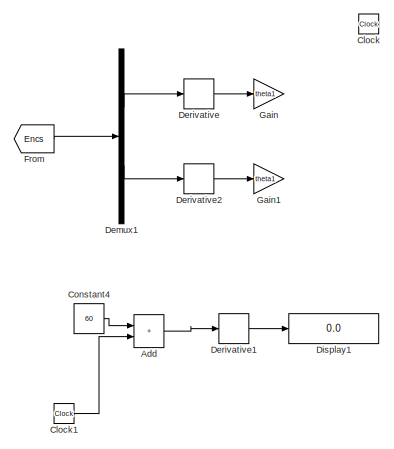
[diagram: root canvas - part 1/3, top left region]
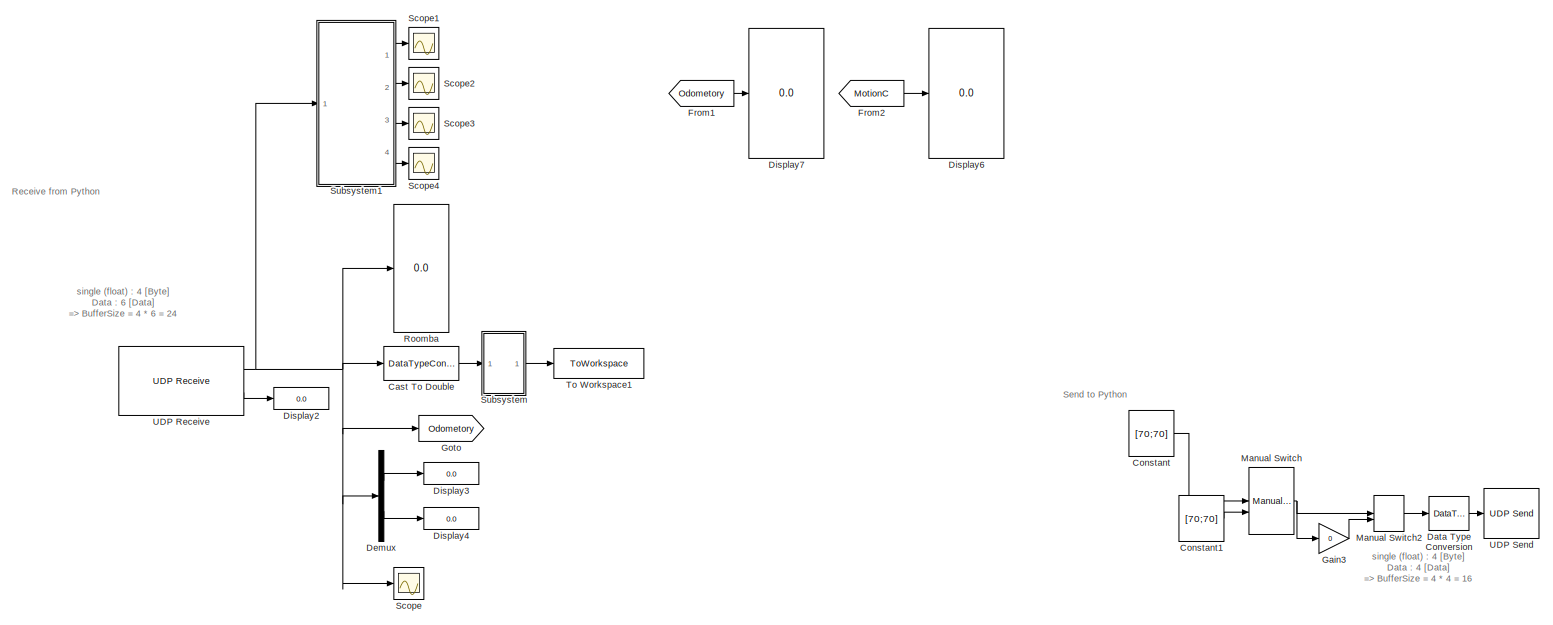
[diagram: root canvas - part 2/3, top right region]
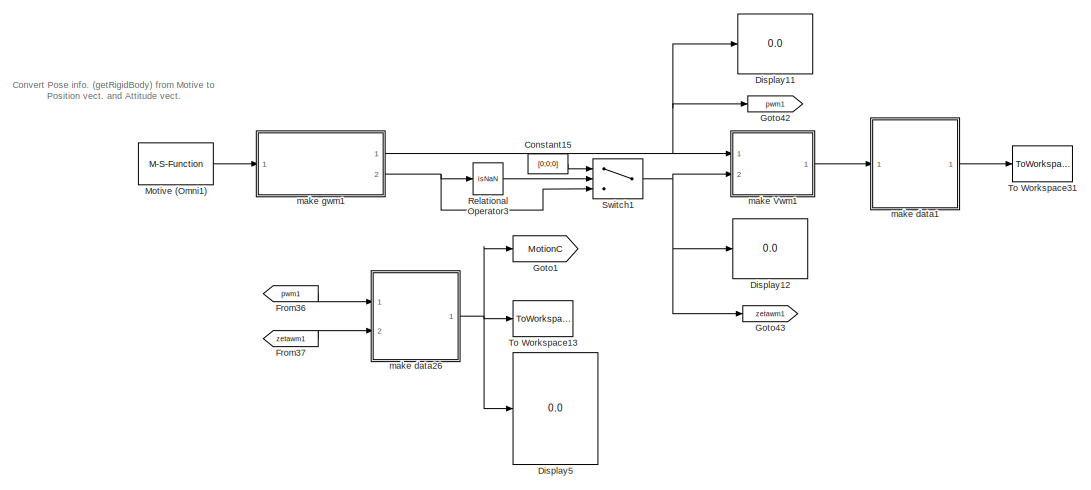
[diagram: root canvas - part 3/3, bottom center region]
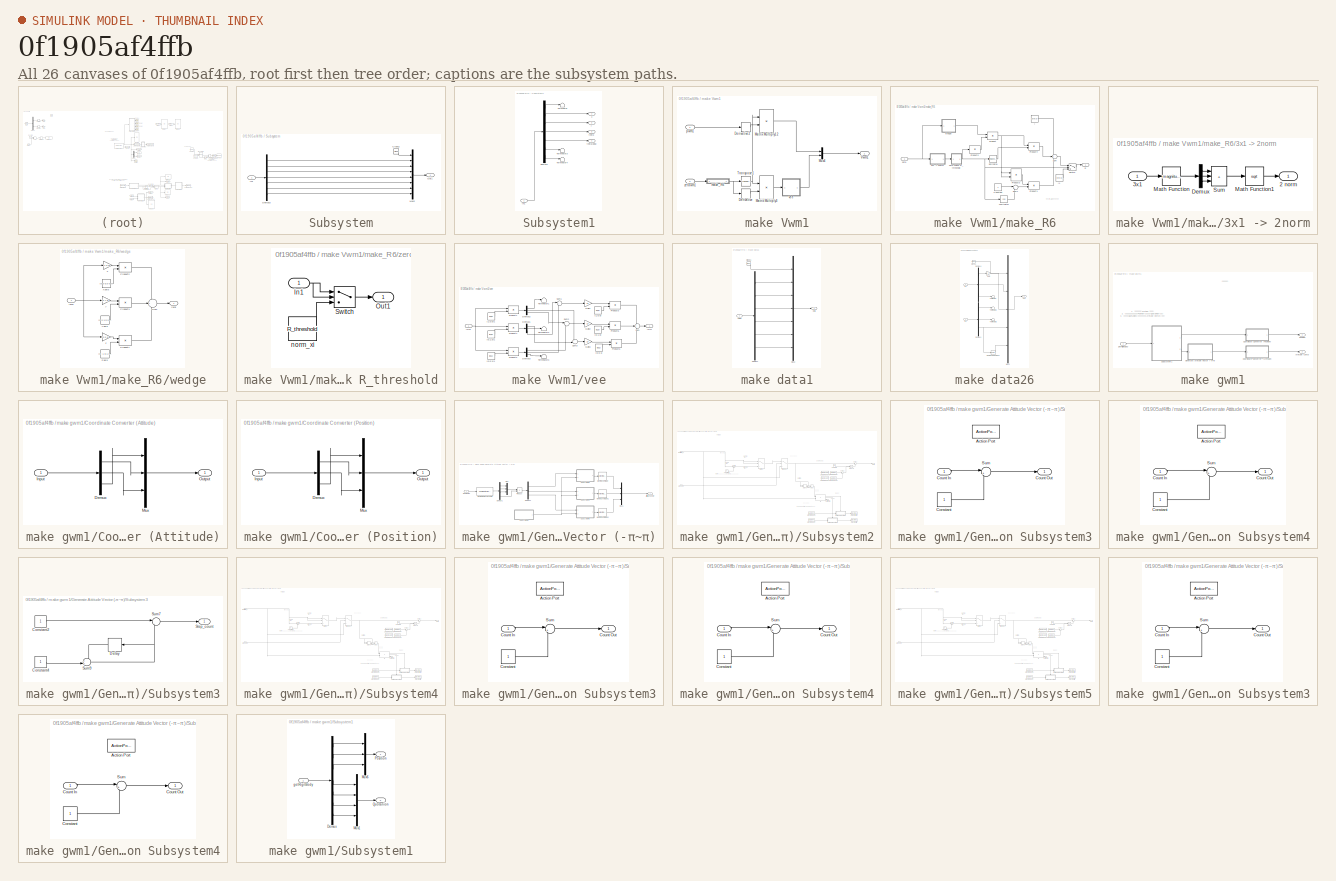
[diagram: thumbnail index - all 26 canvases of the model, root first then tree order]
MODEL slx_0f1905af4ffb
KIND model
CONFIG AbsTol = auto
CONFIG EnableMultiTasking = off
CONFIG FixedStep = 0.01
CONFIG MaxStep = auto
CONFIG MinStep = auto
CONFIG RelTol = 1e-3
CONFIG SampleTimeConstraint = Unconstrained
CONFIG SolverName = FixedStepAuto
CONFIG StartTime = 0.0
CONFIG StopTime = inf
BLOCK [Sum] Add
  Commented = on
  IconShape = rectangular
  Ports = [2, 1]
BLOCK [DataTypeConversion] Cast To Double
  OutDataTypeStr = double
  RndMeth = Floor
  SaturateOnIntegerOverflow = off
BLOCK [Clock] Clock
  Commented = on
BLOCK [Clock] Clock1
  Commented = on
BLOCK [Constant] Constant
  Commented = on
  Value = [70;70]
BLOCK [Constant] Constant1
  Commented = on
  Value = [70;70]
BLOCK [Constant] Constant15
  Value = [0;0;0]
BLOCK [Constant] Constant4
  Commented = on
  Value = 60
BLOCK [DataTypeConversion] Data Type Conversion
  Commented = on
  OutDataTypeStr = single
  RndMeth = Floor
  SaturateOnIntegerOverflow = off
BLOCK [Demux] Demux
  Outputs = 2
  Ports = [1, 2]
BLOCK [Demux] Demux1
  Commented = on
  Outputs = 2
  Ports = [1, 2]
BLOCK [Derivative] Derivative
  Commented = on
BLOCK [Derivative] Derivative1
  Commented = on
BLOCK [Derivative] Derivative2
  Commented = on
BLOCK [Display] Display1
  Commented = on
  Decimation = 1
  Ports = [1]
BLOCK [Display] Display11
  Decimation = 1
  Ports = [1]
BLOCK [Display] Display12
  Decimation = 1
  Ports = [1]
BLOCK [Display] Display2
  Decimation = 1
  Ports = [1]
BLOCK [Display] Display3
  Decimation = 1
  Ports = [1]
BLOCK [Display] Display4
  Decimation = 1
  Ports = [1]
BLOCK [Display] Display5
  Decimation = 1
  Ports = [1]
BLOCK [Display] Display6
  Decimation = 1
  Ports = [1]
BLOCK [Display] Display7
  Decimation = 1
  Ports = [1]
BLOCK [From] From
  Commented = on
  GotoTag = Encs
BLOCK [From] From1
  GotoTag = Odometory
BLOCK [From] From2
  GotoTag = MotionC
BLOCK [From] From36
  GotoTag = pwm1
  TagVisibility = global
BLOCK [From] From37
  GotoTag = zetawm1
  TagVisibility = global
BLOCK [Gain] Gain
  Commented = on
  Gain = theta1
BLOCK [Gain] Gain1
  Commented = on
  Gain = theta1
BLOCK [Gain] Gain3
  Commented = on
  Gain = 0
BLOCK [Goto] Goto
  GotoTag = Odometory
BLOCK [Goto] Goto1
  GotoTag = MotionC
BLOCK [Goto] Goto42
  GotoTag = pwm1
  TagVisibility = global
BLOCK [Goto] Goto43
  GotoTag = zetawm1
  TagVisibility = global
BLOCK [ManualSwitch] Manual Switch
  Commented = on
BLOCK [ManualSwitch] Manual Switch2
  Commented = on
  CurrentSetting = 0
BLOCK [M-S-Function] Motive (Omni1)
  FunctionName = getRigidBody
  Parameters = 1
  Ports = [0, 1]
BLOCK [RelationalOperator] Relational Operator3
  InputSameDT = off
  Operator = isNaN
  OutDataTypeStr = boolean
  Ports = [1, 1]
  RndMeth = Simplest
BLOCK [Display] Roomba
  Decimation = 1
  Ports = [1]
BLOCK [Scope] Scope
  Floating = off
  NumInputPorts = 1
  Ports = [1]
  ScopeSpecificationString = Simulink.scopes.TimeScopeBlockCfg('CurrentConfiguration', extmgr.ConfigurationSet(extmgr.Configuration('Core','General UI',true),extmgr.Configuration('Core','Source UI',true),extmgr.Configuration('Sources','WiredSimulink',true),extmgr.Configuration('Visuals','Time Domain',true,'SerializedDisplays',{struct('MinYLimReal','-7.5','MaxYLimReal','7.5','YLabelReal','','MinYLimMag','0.00000','MaxYLimMag',...<+1463ch>
BLOCK [Scope] Scope1
  Floating = off
  NumInputPorts = 1
  Ports = [1]
  ScopeSpecificationString = Simulink.scopes.TimeScopeBlockCfg('CurrentConfiguration', extmgr.ConfigurationSet(extmgr.Configuration('Core','General UI',true),extmgr.Configuration('Core','Source UI',true),extmgr.Configuration('Sources','WiredSimulink',true,'DataLoggingVariableName','ScopeData1'),extmgr.Configuration('Visuals','Time Domain',true,'SerializedDisplays',{struct('MinYLimReal','-0.22566','MaxYLimReal','2.03096','YLab...<+1443ch>
BLOCK [Scope] Scope2
  Floating = off
  NumInputPorts = 1
  Ports = [1]
  ScopeSpecificationString = Simulink.scopes.TimeScopeBlockCfg('CurrentConfiguration', extmgr.ConfigurationSet(extmgr.Configuration('Core','General UI',true),extmgr.Configuration('Core','Source UI',true),extmgr.Configuration('Sources','WiredSimulink',true,'DataLoggingVariableName','ScopeData2'),extmgr.Configuration('Visuals','Time Domain',true,'SerializedDisplays',{struct('MinYLimReal','-1.79071','MaxYLimReal','0.20035','YLab...<+1444ch>
BLOCK [Scope] Scope3
  Floating = off
  NumInputPorts = 1
  Ports = [1]
  ScopeSpecificationString = Simulink.scopes.TimeScopeBlockCfg('CurrentConfiguration', extmgr.ConfigurationSet(extmgr.Configuration('Core','General UI',true),extmgr.Configuration('Core','Source UI',true),extmgr.Configuration('Sources','WiredSimulink',true,'DataLoggingVariableName','ScopeData3'),extmgr.Configuration('Visuals','Time Domain',true,'SerializedDisplays',{struct('MinYLimReal','-2.22803','MaxYLimReal','0.26437','YLab...<+1445ch>
BLOCK [Scope] Scope4
  Floating = off
  NumInputPorts = 1
  Ports = [1]
  ScopeSpecificationString = Simulink.scopes.TimeScopeBlockCfg('CurrentConfiguration', extmgr.ConfigurationSet(extmgr.Configuration('Core','General UI',true),extmgr.Configuration('Core','Source UI',true),extmgr.Configuration('Sources','WiredSimulink',true,'DataLoggingVariableName','ScopeData4'),extmgr.Configuration('Visuals','Time Domain',true,'SerializedDisplays',{struct('MinYLimReal','-7.1673','MaxYLimReal','1.6394','YLabel...<+1438ch>
BLOCK [SubSystem] Subsystem
  Ports = [1, 1]
  RequestExecContextInheritance = off
BLOCK [Clock] Subsystem/Clock2
BLOCK [Demux] Subsystem/Demux3
  Outputs = 7
  Ports = [1, 7]
BLOCK [Inport] Subsystem/In1
BLOCK [Mux] Subsystem/Mux2
  DisplayOption = bar
  Inputs = 8
  Ports = [8, 1]
BLOCK [Outport] Subsystem/Out1
BLOCK [SubSystem] Subsystem1
  Ports = [1, 4]
  RequestExecContextInheritance = off
BLOCK [Demux] Subsystem1/Demux2
  Outputs = 7
  Ports = [1, 7]
BLOCK [Inport] Subsystem1/In1
BLOCK [Terminator] Subsystem1/Terminator
BLOCK [Terminator] Subsystem1/Terminator3
BLOCK [Terminator] Subsystem1/Terminator4
BLOCK [Outport] Subsystem1/theta
  Port = 3
BLOCK [Outport] Subsystem1/theta(deg)
  Port = 4
BLOCK [Outport] Subsystem1/x
BLOCK [Outport] Subsystem1/y
  Port = 2
BLOCK [Switch] Switch1
  Criteria = u2 ~= 0
  InputSameDT = off
  SaturateOnIntegerOverflow = off
BLOCK [ToWorkspace] To Workspace1
  FixptAsFi = on
  MaxDataPoints = inf
  Ports = [1]
  SampleTime = -1
  SaveFormat = Structure With Time
  VariableName = roomba
BLOCK [ToWorkspace] To Workspace13
  FixptAsFi = on
  MaxDataPoints = inf
  Ports = [1]
  SampleTime = -1
  SaveFormat = Structure With Time
  VariableName = wm1
BLOCK [ToWorkspace] To Workspace31
  FixptAsFi = on
  MaxDataPoints = inf
  Ports = [1]
  SampleTime = -1
  SaveFormat = Structure With Time
  VariableName = Vwm1
BLOCK [Reference] UDP Receive  REF=dspnetwork/UDP Receive
  Ports = [0, 2]
  SourceBlock = dspnetwork/UDP Receive
  SourceProductBaseCode = SL
  SourceType = UDP Receive
BLOCK [Reference] UDP Send  REF=dspnetwork/UDP Send
  Commented = on
  Ports = [1]
  SourceBlock = dspnetwork/UDP Send
  SourceProductBaseCode = SL
  SourceType = UDP Send
BLOCK [SubSystem] make Vwm1
  Ports = [2, 1]
  RequestExecContextInheritance = off
BLOCK [Derivative] make Vwm1/Derivative
BLOCK [Derivative] make Vwm1/Derivative2
BLOCK [Product] make Vwm1/Matrix Multiply12
  Multiplication = Matrix(*)
  Ports = [2, 1]
BLOCK [Product] make Vwm1/Matrix Multiply3
  Multiplication = Matrix(*)
  Ports = [2, 1]
BLOCK [Mux] make Vwm1/Mux4
  DisplayOption = bar
  Inputs = 2
  Ports = [2, 1]
BLOCK [Math] make Vwm1/Transpose1
  Operator = transpose
  Ports = [1, 1]
BLOCK [Outport] make Vwm1/Vwm1
BLOCK [SubSystem] make Vwm1/make_R6
  Ports = [1, 1]
  RequestExecContextInheritance = off
BLOCK [SubSystem] make Vwm1/make_R6/3x1 -> 2norm
  Ports = [1, 1]
  RequestExecContextInheritance = off
BLOCK [Outport] make Vwm1/make_R6/3x1 -> 2norm/2 norm
  VectorParamsAs1DForOutWhenUnconnected = off
BLOCK [Inport] make Vwm1/make_R6/3x1 -> 2norm/3x1
BLOCK [Demux] make Vwm1/make_R6/3x1 -> 2norm/Demux
  DisplayOption = none
  Outputs = 3
  Ports = [1, 3]
BLOCK [Math] make Vwm1/make_R6/3x1 -> 2norm/Math Function
  Operator = magnitude^2
  Ports = [1, 1]
  SignedPower = on
BLOCK [Math] make Vwm1/make_R6/3x1 -> 2norm/Math Function1
  Operator = sqrt
  Ports = [1, 1]
  SignedPower = on
BLOCK [Sum] make Vwm1/make_R6/3x1 -> 2norm/Sum
  IconShape = rectangular
  InputSameDT = on
  Inputs = +++
  OutDataTypeStr = Inherit: Same as first input
  Ports = [3, 1]
  SaturateOnIntegerOverflow = on
BLOCK [Constant] make Vwm1/make_R6/Constant
BLOCK [Constant] make Vwm1/make_R6/I
  Value = eye(3)
  VectorParams1D = off
BLOCK [Constant] make Vwm1/make_R6/I1
  Value = eye(3)
  VectorParams1D = off
BLOCK [Product] make Vwm1/make_R6/Product
  InputSameDT = on
  OutDataTypeStr = Inherit: Same as first input
  Ports = [2, 1]
  SaturateOnIntegerOverflow = on
BLOCK [Product] make Vwm1/make_R6/Product1
  InputSameDT = on
  OutDataTypeStr = Inherit: Same as first input
  Ports = [2, 1]
  SaturateOnIntegerOverflow = on
BLOCK [Product] make Vwm1/make_R6/Product2
  InputSameDT = on
  Inputs = /
  OutDataTypeStr = Inherit: Same as first input
  Ports = [1, 1]
  SaturateOnIntegerOverflow = on
BLOCK [Product] make Vwm1/make_R6/Product3
  InputSameDT = on
  Multiplication = Matrix(*)
  OutDataTypeStr = Inherit: Same as first input
  Ports = [2, 1]
  SaturateOnIntegerOverflow = on
BLOCK [Product] make Vwm1/make_R6/Product4
  InputSameDT = on
  OutDataTypeStr = Inherit: Same as first input
  Ports = [2, 1]
  SaturateOnIntegerOverflow = on
BLOCK [Outport] make Vwm1/make_R6/R
  VectorParamsAs1DForOutWhenUnconnected = off
BLOCK [Sum] make Vwm1/make_R6/Sum
  InputSameDT = on
  Inputs = +++
  OutDataTypeStr = Inherit: Same as first input
  Ports = [3, 1]
  SaturateOnIntegerOverflow = on
BLOCK [Sum] make Vwm1/make_R6/Sum1
  InputSameDT = on
  Inputs = |+-
  OutDataTypeStr = Inherit: Same as first input
  Ports = [2, 1]
  SaturateOnIntegerOverflow = on
BLOCK [Switch] make Vwm1/make_R6/Switch
  Threshold = R_threshold
BLOCK [Trigonometry] make Vwm1/make_R6/cos(theta)
  Operator = cos
  Ports = [1, 1]
BLOCK [Trigonometry] make Vwm1/make_R6/sin(theta)
  Ports = [1, 1]
BLOCK [SubSystem] make Vwm1/make_R6/wedge
  Ports = [1, 1]
  RequestExecContextInheritance = off
BLOCK [Product] make Vwm1/make_R6/wedge/Product1
  InputSameDT = on
  OutDataTypeStr = Inherit: Same as first input
  Ports = [2, 1]
  SaturateOnIntegerOverflow = on
BLOCK [Product] make Vwm1/make_R6/wedge/Product2
  InputSameDT = on
  OutDataTypeStr = Inherit: Same as first input
  Ports = [2, 1]
  SaturateOnIntegerOverflow = on
BLOCK [Product] make Vwm1/make_R6/wedge/Product3
  InputSameDT = on
  OutDataTypeStr = Inherit: Same as first input
  Ports = [2, 1]
  SaturateOnIntegerOverflow = on
BLOCK [Sum] make Vwm1/make_R6/wedge/Sum
  InputSameDT = on
  Inputs = +++
  OutDataTypeStr = Inherit: Same as first input
  Ports = [3, 1]
  SaturateOnIntegerOverflow = on
BLOCK [Constant] make Vwm1/make_R6/wedge/Xaxis
  Value = [0 0 0;0 0 -1;0 1 0]
  VectorParams1D = off
BLOCK [Constant] make Vwm1/make_R6/wedge/Yaxis
  Value = [0 0 1;0 0 0;-1 0 0]
  VectorParams1D = off
BLOCK [Constant] make Vwm1/make_R6/wedge/Zaxis
  Value = [0 -1 0;1 0 0;0 0 0]
  VectorParams1D = off
BLOCK [Inport] make Vwm1/make_R6/wedge/[3x1]
BLOCK [Outport] make Vwm1/make_R6/wedge/[3x3]
  VectorParamsAs1DForOutWhenUnconnected = off
BLOCK [Gain] make Vwm1/make_R6/wedge/x
  Gain = [1 0 0]
  Multiplication = Matrix(K*u)
  OutDataTypeStr = Inherit: Same as input
  ParamDataTypeStr = Inherit: Same as input
  SaturateOnIntegerOverflow = on
BLOCK [Gain] make Vwm1/make_R6/wedge/y
  Gain = [0 1 0]
  Multiplication = Matrix(K*u)
  OutDataTypeStr = Inherit: Same as input
  ParamDataTypeStr = Inherit: Same as input
  SaturateOnIntegerOverflow = on
BLOCK [Gain] make Vwm1/make_R6/wedge/z
  Gain = [0 0 1]
  Multiplication = Matrix(K*u)
  OutDataTypeStr = Inherit: Same as input
  ParamDataTypeStr = Inherit: Same as input
  SaturateOnIntegerOverflow = on
BLOCK [SubSystem] make Vwm1/make_R6/zero check R_threshold
  Ports = [1, 1]
  RequestExecContextInheritance = off
BLOCK [Inport] make Vwm1/make_R6/zero check R_threshold/In1
BLOCK [Outport] make Vwm1/make_R6/zero check R_threshold/Out1
  VectorParamsAs1DForOutWhenUnconnected = off
BLOCK [Switch] make Vwm1/make_R6/zero check R_threshold/Switch
  Threshold = R_threshold
BLOCK [Constant] make Vwm1/make_R6/zero check R_threshold/norm_xi
  Value = R_threshold
  VectorParams1D = off
BLOCK [Inport] make Vwm1/make_R6/zeta
BLOCK [Inport] make Vwm1/pwm1
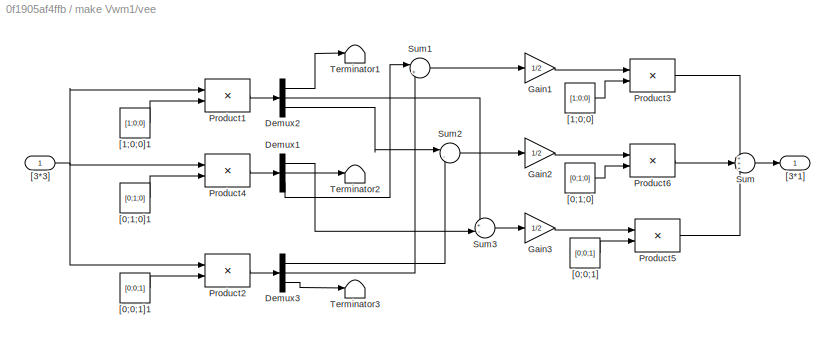
BLOCK [SubSystem] make Vwm1/vee
  Ports = [1, 1]
  RequestExecContextInheritance = off
BLOCK [Demux] make Vwm1/vee/Demux1
  DisplayOption = none
  Outputs = 3
  Ports = [1, 3]
BLOCK [Demux] make Vwm1/vee/Demux2
  DisplayOption = none
  Outputs = 3
  Ports = [1, 3]
BLOCK [Demux] make Vwm1/vee/Demux3
  DisplayOption = none
  Outputs = 3
  Ports = [1, 3]
BLOCK [Gain] make Vwm1/vee/Gain1
  Gain = 1/2
  OutDataTypeStr = Inherit: Same as input
  ParamDataTypeStr = Inherit: Same as input
  SaturateOnIntegerOverflow = on
BLOCK [Gain] make Vwm1/vee/Gain2
  Gain = 1/2
  OutDataTypeStr = Inherit: Same as input
  ParamDataTypeStr = Inherit: Same as input
  SaturateOnIntegerOverflow = on
BLOCK [Gain] make Vwm1/vee/Gain3
  Gain = 1/2
  OutDataTypeStr = Inherit: Same as input
  ParamDataTypeStr = Inherit: Same as input
  SaturateOnIntegerOverflow = on
BLOCK [Product] make Vwm1/vee/Product1
  InputSameDT = on
  Multiplication = Matrix(*)
  OutDataTypeStr = Inherit: Same as first input
  Ports = [2, 1]
  SaturateOnIntegerOverflow = on
BLOCK [Product] make Vwm1/vee/Product2
  InputSameDT = on
  Multiplication = Matrix(*)
  OutDataTypeStr = Inherit: Same as first input
  Ports = [2, 1]
  SaturateOnIntegerOverflow = on
BLOCK [Product] make Vwm1/vee/Product3
  InputSameDT = on
  OutDataTypeStr = Inherit: Same as first input
  Ports = [2, 1]
  SaturateOnIntegerOverflow = on
BLOCK [Product] make Vwm1/vee/Product4
  InputSameDT = on
  Multiplication = Matrix(*)
  OutDataTypeStr = Inherit: Same as first input
  Ports = [2, 1]
  SaturateOnIntegerOverflow = on
BLOCK [Product] make Vwm1/vee/Product5
  InputSameDT = on
  OutDataTypeStr = Inherit: Same as first input
  Ports = [2, 1]
  SaturateOnIntegerOverflow = on
BLOCK [Product] make Vwm1/vee/Product6
  InputSameDT = on
  OutDataTypeStr = Inherit: Same as first input
  Ports = [2, 1]
  SaturateOnIntegerOverflow = on
BLOCK [Sum] make Vwm1/vee/Sum
  InputSameDT = on
  Inputs = +++
  OutDataTypeStr = Inherit: Same as first input
  Ports = [3, 1]
  SaturateOnIntegerOverflow = on
BLOCK [Sum] make Vwm1/vee/Sum1
  InputSameDT = on
  Inputs = |+-
  OutDataTypeStr = Inherit: Same as first input
  Ports = [2, 1]
  SaturateOnIntegerOverflow = on
BLOCK [Sum] make Vwm1/vee/Sum2
  InputSameDT = on
  Inputs = |-+
  OutDataTypeStr = Inherit: Same as first input
  Ports = [2, 1]
  SaturateOnIntegerOverflow = on
BLOCK [Sum] make Vwm1/vee/Sum3
  InputSameDT = on
  Inputs = +-|
  OutDataTypeStr = Inherit: Same as first input
  Ports = [2, 1]
  SaturateOnIntegerOverflow = on
BLOCK [Terminator] make Vwm1/vee/Terminator1
BLOCK [Terminator] make Vwm1/vee/Terminator2
BLOCK [Terminator] make Vwm1/vee/Terminator3
BLOCK [Constant] make Vwm1/vee/[0;0;1]
  Value = [0;0;1]
  VectorParams1D = off
BLOCK [Constant] make Vwm1/vee/[0;0;1]1
  Value = [0;0;1]
  VectorParams1D = off
BLOCK [Constant] make Vwm1/vee/[0;1;0]
  Value = [0;1;0]
  VectorParams1D = off
BLOCK [Constant] make Vwm1/vee/[0;1;0]1
  Value = [0;1;0]
  VectorParams1D = off
BLOCK [Constant] make Vwm1/vee/[1;0;0]
  Value = [1;0;0]
  VectorParams1D = off
BLOCK [Constant] make Vwm1/vee/[1;0;0]1
  Value = [1;0;0]
  VectorParams1D = off
BLOCK [Outport] make Vwm1/vee/[3*1]
  VectorParamsAs1DForOutWhenUnconnected = off
BLOCK [Inport] make Vwm1/vee/[3*3]
BLOCK [Inport] make Vwm1/zetawm1
  Port = 2
BLOCK [SubSystem] make data1
  Ports = [1, 1]
  RequestExecContextInheritance = off
BLOCK [Clock] make data1/Clock1
BLOCK [Demux] make data1/Demux4
  DisplayOption = none
  Outputs = 6
  Ports = [1, 6]
BLOCK [Mux] make data1/Mux2
  DisplayOption = bar
  Inputs = 7
  Ports = [7, 1]
BLOCK [Outport] make data1/Out1
BLOCK [Inport] make data1/Vwm1
BLOCK [SubSystem] make data26
  Ports = [2, 1]
  RequestExecContextInheritance = off
BLOCK [Clock] make data26/Clock1
BLOCK [Demux] make data26/Demux1
  DisplayOption = none
  Outputs = 3
  Ports = [1, 3]
BLOCK [Demux] make data26/Demux4
  DisplayOption = none
  Outputs = 3
  Ports = [1, 3]
BLOCK [Gain] make data26/Gain
  Gain = -1
BLOCK [Inport] make data26/In1
BLOCK [Inport] make data26/In2
  Port = 2
BLOCK [Mux] make data26/Mux2
  DisplayOption = bar
  Inputs = 5
  Ports = [5, 1]
BLOCK [Outport] make data26/Out1
BLOCK [Reference] make data26/Radians to Degrees  REF=simulink_extras/Transformations/Radians
to Degrees
  Ports = [1, 1]
  SourceBlock = simulink_extras/Transformations/Radians\nto Degrees
  SourceProductBaseCode = SL
  SourceType = RadiansToDegrees
BLOCK [Terminator] make data26/Terminator
BLOCK [Terminator] make data26/Terminator1
BLOCK [Terminator] make data26/Terminator2
BLOCK [SubSystem] make gwm1
  Ports = [1, 2]
  RequestExecContextInheritance = off
BLOCK [Outport] make gwm1/Attitude (zeta)
  Port = 2
  VectorParamsAs1DForOutWhenUnconnected = off
BLOCK [SubSystem] make gwm1/Coordinate Converter (Attitude)
  Ports = [1, 1]
  RequestExecContextInheritance = off
BLOCK [Demux] make gwm1/Coordinate Converter (Attitude)/Demux
  Outputs = 3
  Ports = [1, 3]
BLOCK [Inport] make gwm1/Coordinate Converter (Attitude)/Input
BLOCK [Mux] make gwm1/Coordinate Converter (Attitude)/Mux
  DisplayOption = bar
  Inputs = 3
  Ports = [3, 1]
BLOCK [Outport] make gwm1/Coordinate Converter (Attitude)/Output
  VectorParamsAs1DForOutWhenUnconnected = off
BLOCK [SubSystem] make gwm1/Coordinate Converter (Position)
  Ports = [1, 1]
  RequestExecContextInheritance = off
BLOCK [Demux] make gwm1/Coordinate Converter (Position)/Demux
  Outputs = 3
  Ports = [1, 3]
BLOCK [Inport] make gwm1/Coordinate Converter (Position)/Input
BLOCK [Mux] make gwm1/Coordinate Converter (Position)/Mux
  DisplayOption = bar
  Inputs = 3
  Ports = [3, 1]
BLOCK [Outport] make gwm1/Coordinate Converter (Position)/Output
  VectorParamsAs1DForOutWhenUnconnected = off
BLOCK [SubSystem] make gwm1/Generate Attitude Vector (-π~π)
  Ports = [1, 1]
  RequestExecContextInheritance = off
BLOCK [Outport] make gwm1/Generate Attitude Vector (-π~π)/Attitude Vector
  VectorParamsAs1DForOutWhenUnconnected = off
BLOCK [Demux] make gwm1/Generate Attitude Vector (-π~π)/Demux1
  Ports = [1, 4]
BLOCK [Demux] make gwm1/Generate Attitude Vector (-π~π)/Demux2
  Outputs = 3
  Ports = [1, 3]
BLOCK [Reference] make gwm1/Generate Attitude Vector (-π~π)/Moving Average  REF=dspstat3/Moving
Average
  Ports = [1, 1]
  SourceBlock = dspstat3/Moving\nAverage
  SourceProductBaseCode = DS
  SourceType = dsp.simulink.MovingAverage
BLOCK [Reference] make gwm1/Generate Attitude Vector (-π~π)/Moving Average1  REF=dspstat3/Moving
Average
  Ports = [1, 1]
  SourceBlock = dspstat3/Moving\nAverage
  SourceProductBaseCode = DS
  SourceType = dsp.simulink.MovingAverage
BLOCK [Reference] make gwm1/Generate Attitude Vector (-π~π)/Moving Average2  REF=dspstat3/Moving
Average
  Ports = [1, 1]
  SourceBlock = dspstat3/Moving\nAverage
  SourceProductBaseCode = DS
  SourceType = dsp.simulink.MovingAverage
BLOCK [Mux] make gwm1/Generate Attitude Vector (-π~π)/Mux
  DisplayOption = bar
  Inputs = 3
  Ports = [3, 1]
BLOCK [Mux] make gwm1/Generate Attitude Vector (-π~π)/Mux1
  DisplayOption = bar
  Inputs = 3
  Ports = [3, 1]
BLOCK [Product] make gwm1/Generate Attitude Vector (-π~π)/Product
  Ports = [2, 1]
BLOCK [Inport] make gwm1/Generate Attitude Vector (-π~π)/Quotanion
BLOCK [Reference] make gwm1/Generate Attitude Vector (-π~π)/Quotanion to Axis-Angle  REF=robotcorelib/Coordinate Transformation Conversion
  Ports = [1, 1]
  SourceBlock = robotcorelib/Coordinate Transformation Conversion
  SourceProductBaseCode = NV,RO,RR,UV
  SourceType = robotics.slcore.internal.block.CoordinateTransformationConversion
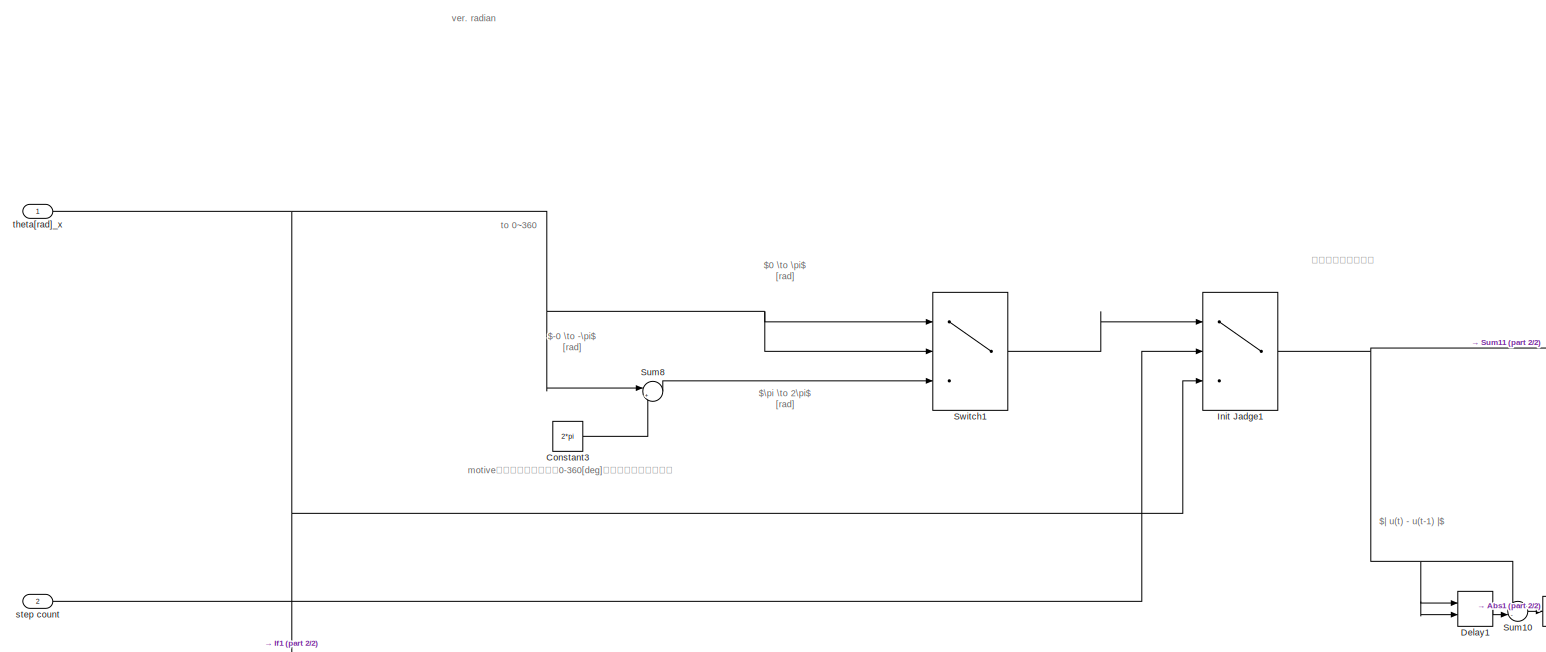
[diagram: make gwm1/Generate Attitude Vector (-π~π)/Subsystem2 - part 1/2, top center region]
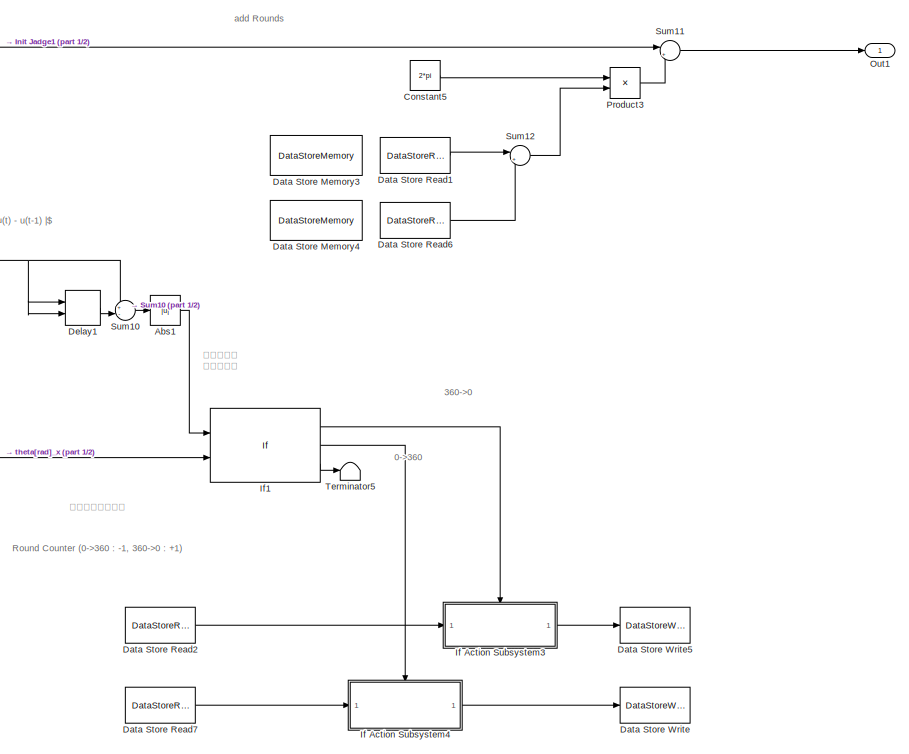
[diagram: make gwm1/Generate Attitude Vector (-π~π)/Subsystem2 - part 2/2, middle right region]
BLOCK [SubSystem] make gwm1/Generate Attitude Vector (-π~π)/Subsystem2
  Ports = [2, 1]
  RequestExecContextInheritance = off
BLOCK [Abs] make gwm1/Generate Attitude Vector (-π~π)/Subsystem2/Abs1
  SaturateOnIntegerOverflow = off
BLOCK [Constant] make gwm1/Generate Attitude Vector (-π~π)/Subsystem2/Constant3
  Value = 2*pi
BLOCK [Constant] make gwm1/Generate Attitude Vector (-π~π)/Subsystem2/Constant5
  Value = 2*pi
BLOCK [DataStoreMemory] make gwm1/Generate Attitude Vector (-π~π)/Subsystem2/Data Store Memory3
  DataStoreName = CountP_rad
  ReadBeforeWriteMsg = warning
  ShowAdditionalParam = off
  WriteAfterReadMsg = warning
  WriteAfterWriteMsg = warning
BLOCK [DataStoreMemory] make gwm1/Generate Attitude Vector (-π~π)/Subsystem2/Data Store Memory4
  DataStoreName = CountM_rad
  ReadBeforeWriteMsg = warning
  ShowAdditionalParam = off
  WriteAfterReadMsg = warning
  WriteAfterWriteMsg = warning
BLOCK [DataStoreRead] make gwm1/Generate Attitude Vector (-π~π)/Subsystem2/Data Store Read1
  DataStoreName = CountP_rad
  IndexOptions = Index vector (dialog)
  Indices = 1
  OutputSizes = 1
  Ports = [0, 1]
BLOCK [DataStoreRead] make gwm1/Generate Attitude Vector (-π~π)/Subsystem2/Data Store Read2
  DataStoreName = CountP_rad
  IndexOptions = Index vector (dialog)
  Indices = 1
  OutputSizes = 1
  Ports = [0, 1]
BLOCK [DataStoreRead] make gwm1/Generate Attitude Vector (-π~π)/Subsystem2/Data Store Read6
  DataStoreName = CountM_rad
  IndexOptions = Index vector (dialog)
  Indices = 1
  OutputSizes = 1
  Ports = [0, 1]
BLOCK [DataStoreRead] make gwm1/Generate Attitude Vector (-π~π)/Subsystem2/Data Store Read7
  DataStoreName = CountM_rad
  IndexOptions = Index vector (dialog)
  Indices = 1
  OutputSizes = 1
  Ports = [0, 1]
BLOCK [DataStoreWrite] make gwm1/Generate Attitude Vector (-π~π)/Subsystem2/Data Store Write
  DataStoreName = CountM_rad
  IndexOptions = Index vector (dialog)
  Indices = 1
  OutputSizes = 1
  Ports = [1]
BLOCK [DataStoreWrite] make gwm1/Generate Attitude Vector (-π~π)/Subsystem2/Data Store Write5
  DataStoreName = CountP_rad
  IndexOptions = Index vector (dialog)
  Indices = 1
  OutputSizes = 1
  Ports = [1]
BLOCK [Delay] make gwm1/Generate Attitude Vector (-π~π)/Subsystem2/Delay1
  DelayLength = 1
  InitialCondition = 0
  InitialConditionSource = Input port
  InputPortMap = u0,p4
  Ports = [2, 1]
BLOCK [SubSystem] make gwm1/Generate Attitude Vector (-π~π)/Subsystem2/If Action Subsystem3
  Ports = [1, 1, 0, 0, 0, 0, 0, 1]
  RequestExecContextInheritance = off
  TreatAsAtomicUnit = on
BLOCK [ActionPort] make gwm1/Generate Attitude Vector (-π~π)/Subsystem2/If Action Subsystem3/Action Port
  ActionPortLabel = if((u1 >= pi) & (u2 >= 0))
BLOCK [Constant] make gwm1/Generate Attitude Vector (-π~π)/Subsystem2/If Action Subsystem3/Constant
BLOCK [Inport] make gwm1/Generate Attitude Vector (-π~π)/Subsystem2/If Action Subsystem3/Count In
BLOCK [Outport] make gwm1/Generate Attitude Vector (-π~π)/Subsystem2/If Action Subsystem3/Count Out
  VectorParamsAs1DForOutWhenUnconnected = off
BLOCK [Sum] make gwm1/Generate Attitude Vector (-π~π)/Subsystem2/If Action Subsystem3/Sum
  Inputs = |++
  Ports = [2, 1]
BLOCK [SubSystem] make gwm1/Generate Attitude Vector (-π~π)/Subsystem2/If Action Subsystem4
  Ports = [1, 1, 0, 0, 0, 0, 0, 1]
  RequestExecContextInheritance = off
  TreatAsAtomicUnit = on
BLOCK [ActionPort] make gwm1/Generate Attitude Vector (-π~π)/Subsystem2/If Action Subsystem4/Action Port
  ActionPortLabel = elseif((u1 >= pi) & (u2 < 0))
BLOCK [Constant] make gwm1/Generate Attitude Vector (-π~π)/Subsystem2/If Action Subsystem4/Constant
BLOCK [Inport] make gwm1/Generate Attitude Vector (-π~π)/Subsystem2/If Action Subsystem4/Count In
BLOCK [Outport] make gwm1/Generate Attitude Vector (-π~π)/Subsystem2/If Action Subsystem4/Count Out
  VectorParamsAs1DForOutWhenUnconnected = off
BLOCK [Sum] make gwm1/Generate Attitude Vector (-π~π)/Subsystem2/If Action Subsystem4/Sum
  Inputs = |+-
  Ports = [2, 1]
BLOCK [If] make gwm1/Generate Attitude Vector (-π~π)/Subsystem2/If1
  ElseIfExpressions = (u1 >= pi) & (u2 < 0)
  IfExpression = (u1 >= pi) & (u2 >= 0)
  NumInputs = 2
  Ports = [2, 3]
BLOCK [Switch] make gwm1/Generate Attitude Vector (-π~π)/Subsystem2/Init Jadge1
  Criteria = u2 > Threshold
  InputSameDT = off
  SaturateOnIntegerOverflow = off
  Threshold = 1
BLOCK [Outport] make gwm1/Generate Attitude Vector (-π~π)/Subsystem2/Out1
  VectorParamsAs1DForOutWhenUnconnected = off
BLOCK [Product] make gwm1/Generate Attitude Vector (-π~π)/Subsystem2/Product3
  Ports = [2, 1]
BLOCK [Sum] make gwm1/Generate Attitude Vector (-π~π)/Subsystem2/Sum10
  Inputs = +-|
  Ports = [2, 1]
BLOCK [Sum] make gwm1/Generate Attitude Vector (-π~π)/Subsystem2/Sum11
  Inputs = |++
  Ports = [2, 1]
BLOCK [Sum] make gwm1/Generate Attitude Vector (-π~π)/Subsystem2/Sum12
  Inputs = |++
  Ports = [2, 1]
BLOCK [Sum] make gwm1/Generate Attitude Vector (-π~π)/Subsystem2/Sum8
  Inputs = |++
  Ports = [2, 1]
BLOCK [Switch] make gwm1/Generate Attitude Vector (-π~π)/Subsystem2/Switch1
  InputSameDT = off
  SaturateOnIntegerOverflow = off
BLOCK [Terminator] make gwm1/Generate Attitude Vector (-π~π)/Subsystem2/Terminator5
BLOCK [Inport] make gwm1/Generate Attitude Vector (-π~π)/Subsystem2/step count
  Port = 2
BLOCK [Inport] make gwm1/Generate Attitude Vector (-π~π)/Subsystem2/theta[rad]_x
BLOCK [SubSystem] make gwm1/Generate Attitude Vector (-π~π)/Subsystem3
  Ports = [0, 1]
  RequestExecContextInheritance = off
BLOCK [Constant] make gwm1/Generate Attitude Vector (-π~π)/Subsystem3/Constant2
BLOCK [Constant] make gwm1/Generate Attitude Vector (-π~π)/Subsystem3/Constant4
BLOCK [Delay] make gwm1/Generate Attitude Vector (-π~π)/Subsystem3/Delay
  DelayLength = 1
  InitialCondition = 0
  InputPortMap = u0
  NameLocation = top
  Ports = [1, 1]
BLOCK [Outport] make gwm1/Generate Attitude Vector (-π~π)/Subsystem3/Step_count
  VectorParamsAs1DForOutWhenUnconnected = off
BLOCK [Sum] make gwm1/Generate Attitude Vector (-π~π)/Subsystem3/Sum7
  Inputs = |-+
  Ports = [2, 1]
BLOCK [Sum] make gwm1/Generate Attitude Vector (-π~π)/Subsystem3/Sum9
  Inputs = ++|
  Ports = [2, 1]
BLOCK [SubSystem] make gwm1/Generate Attitude Vector (-π~π)/Subsystem4
  Ports = [2, 1]
  RequestExecContextInheritance = off
BLOCK [Abs] make gwm1/Generate Attitude Vector (-π~π)/Subsystem4/Abs1
  SaturateOnIntegerOverflow = off
BLOCK [Constant] make gwm1/Generate Attitude Vector (-π~π)/Subsystem4/Constant3
  Value = 2*pi
BLOCK [Constant] make gwm1/Generate Attitude Vector (-π~π)/Subsystem4/Constant5
  Value = 2*pi
BLOCK [DataStoreMemory] make gwm1/Generate Attitude Vector (-π~π)/Subsystem4/Data Store Memory3
  DataStoreName = CountP_rad
  ReadBeforeWriteMsg = warning
  ShowAdditionalParam = off
  WriteAfterReadMsg = warning
  WriteAfterWriteMsg = warning
BLOCK [DataStoreMemory] make gwm1/Generate Attitude Vector (-π~π)/Subsystem4/Data Store Memory4
  DataStoreName = CountM_rad
  ReadBeforeWriteMsg = warning
  ShowAdditionalParam = off
  WriteAfterReadMsg = warning
  WriteAfterWriteMsg = warning
BLOCK [DataStoreRead] make gwm1/Generate Attitude Vector (-π~π)/Subsystem4/Data Store Read1
  DataStoreName = CountP_rad
  IndexOptions = Index vector (dialog)
  Indices = 1
  OutputSizes = 1
  Ports = [0, 1]
BLOCK [DataStoreRead] make gwm1/Generate Attitude Vector (-π~π)/Subsystem4/Data Store Read2
  DataStoreName = CountP_rad
  IndexOptions = Index vector (dialog)
  Indices = 1
  OutputSizes = 1
  Ports = [0, 1]
BLOCK [DataStoreRead] make gwm1/Generate Attitude Vector (-π~π)/Subsystem4/Data Store Read6
  DataStoreName = CountM_rad
  IndexOptions = Index vector (dialog)
  Indices = 1
  OutputSizes = 1
  Ports = [0, 1]
BLOCK [DataStoreRead] make gwm1/Generate Attitude Vector (-π~π)/Subsystem4/Data Store Read7
  DataStoreName = CountM_rad
  IndexOptions = Index vector (dialog)
  Indices = 1
  OutputSizes = 1
  Ports = [0, 1]
BLOCK [DataStoreWrite] make gwm1/Generate Attitude Vector (-π~π)/Subsystem4/Data Store Write
  DataStoreName = CountM_rad
  IndexOptions = Index vector (dialog)
  Indices = 1
  OutputSizes = 1
  Ports = [1]
BLOCK [DataStoreWrite] make gwm1/Generate Attitude Vector (-π~π)/Subsystem4/Data Store Write5
  DataStoreName = CountP_rad
  IndexOptions = Index vector (dialog)
  Indices = 1
  OutputSizes = 1
  Ports = [1]
BLOCK [Delay] make gwm1/Generate Attitude Vector (-π~π)/Subsystem4/Delay1
  DelayLength = 1
  InitialCondition = 0
  InitialConditionSource = Input port
  InputPortMap = u0,p4
  Ports = [2, 1]
BLOCK [SubSystem] make gwm1/Generate Attitude Vector (-π~π)/Subsystem4/If Action Subsystem3
  Ports = [1, 1, 0, 0, 0, 0, 0, 1]
  RequestExecContextInheritance = off
  TreatAsAtomicUnit = on
BLOCK [ActionPort] make gwm1/Generate Attitude Vector (-π~π)/Subsystem4/If Action Subsystem3/Action Port
  ActionPortLabel = if((u1 >= pi) & (u2 >= 0))
BLOCK [Constant] make gwm1/Generate Attitude Vector (-π~π)/Subsystem4/If Action Subsystem3/Constant
BLOCK [Inport] make gwm1/Generate Attitude Vector (-π~π)/Subsystem4/If Action Subsystem3/Count In
BLOCK [Outport] make gwm1/Generate Attitude Vector (-π~π)/Subsystem4/If Action Subsystem3/Count Out
  VectorParamsAs1DForOutWhenUnconnected = off
BLOCK [Sum] make gwm1/Generate Attitude Vector (-π~π)/Subsystem4/If Action Subsystem3/Sum
  Inputs = |++
  Ports = [2, 1]
BLOCK [SubSystem] make gwm1/Generate Attitude Vector (-π~π)/Subsystem4/If Action Subsystem4
  Ports = [1, 1, 0, 0, 0, 0, 0, 1]
  RequestExecContextInheritance = off
  TreatAsAtomicUnit = on
BLOCK [ActionPort] make gwm1/Generate Attitude Vector (-π~π)/Subsystem4/If Action Subsystem4/Action Port
  ActionPortLabel = elseif((u1 >= pi) & (u2 < 0))
BLOCK [Constant] make gwm1/Generate Attitude Vector (-π~π)/Subsystem4/If Action Subsystem4/Constant
BLOCK [Inport] make gwm1/Generate Attitude Vector (-π~π)/Subsystem4/If Action Subsystem4/Count In
BLOCK [Outport] make gwm1/Generate Attitude Vector (-π~π)/Subsystem4/If Action Subsystem4/Count Out
  VectorParamsAs1DForOutWhenUnconnected = off
BLOCK [Sum] make gwm1/Generate Attitude Vector (-π~π)/Subsystem4/If Action Subsystem4/Sum
  Inputs = |+-
  Ports = [2, 1]
BLOCK [If] make gwm1/Generate Attitude Vector (-π~π)/Subsystem4/If1
  ElseIfExpressions = (u1 >= pi) & (u2 < 0)
  IfExpression = (u1 >= pi) & (u2 >= 0)
  NumInputs = 2
  Ports = [2, 3]
BLOCK [Switch] make gwm1/Generate Attitude Vector (-π~π)/Subsystem4/Init Jadge1
  Criteria = u2 > Threshold
  InputSameDT = off
  SaturateOnIntegerOverflow = off
  Threshold = 1
BLOCK [Outport] make gwm1/Generate Attitude Vector (-π~π)/Subsystem4/Out1
  VectorParamsAs1DForOutWhenUnconnected = off
BLOCK [Product] make gwm1/Generate Attitude Vector (-π~π)/Subsystem4/Product3
  Ports = [2, 1]
BLOCK [Sum] make gwm1/Generate Attitude Vector (-π~π)/Subsystem4/Sum10
  Inputs = +-|
  Ports = [2, 1]
BLOCK [Sum] make gwm1/Generate Attitude Vector (-π~π)/Subsystem4/Sum11
  Inputs = |++
  Ports = [2, 1]
BLOCK [Sum] make gwm1/Generate Attitude Vector (-π~π)/Subsystem4/Sum12
  Inputs = |++
  Ports = [2, 1]
BLOCK [Sum] make gwm1/Generate Attitude Vector (-π~π)/Subsystem4/Sum8
  Inputs = |++
  Ports = [2, 1]
BLOCK [Switch] make gwm1/Generate Attitude Vector (-π~π)/Subsystem4/Switch1
  InputSameDT = off
  SaturateOnIntegerOverflow = off
BLOCK [Terminator] make gwm1/Generate Attitude Vector (-π~π)/Subsystem4/Terminator5
BLOCK [Inport] make gwm1/Generate Attitude Vector (-π~π)/Subsystem4/step count
  Port = 2
BLOCK [Inport] make gwm1/Generate Attitude Vector (-π~π)/Subsystem4/theta[rad]_y
BLOCK [SubSystem] make gwm1/Generate Attitude Vector (-π~π)/Subsystem5
  Ports = [2, 1]
  RequestExecContextInheritance = off
BLOCK [Abs] make gwm1/Generate Attitude Vector (-π~π)/Subsystem5/Abs1
  SaturateOnIntegerOverflow = off
BLOCK [Constant] make gwm1/Generate Attitude Vector (-π~π)/Subsystem5/Constant3
  Value = 2*pi
BLOCK [Constant] make gwm1/Generate Attitude Vector (-π~π)/Subsystem5/Constant5
  Value = 2*pi
BLOCK [DataStoreMemory] make gwm1/Generate Attitude Vector (-π~π)/Subsystem5/Data Store Memory3
  DataStoreName = CountP_rad
  ReadBeforeWriteMsg = warning
  ShowAdditionalParam = off
  WriteAfterReadMsg = warning
  WriteAfterWriteMsg = warning
BLOCK [DataStoreMemory] make gwm1/Generate Attitude Vector (-π~π)/Subsystem5/Data Store Memory4
  DataStoreName = CountM_rad
  ReadBeforeWriteMsg = warning
  ShowAdditionalParam = off
  WriteAfterReadMsg = warning
  WriteAfterWriteMsg = warning
BLOCK [DataStoreRead] make gwm1/Generate Attitude Vector (-π~π)/Subsystem5/Data Store Read1
  DataStoreName = CountP_rad
  IndexOptions = Index vector (dialog)
  Indices = 1
  OutputSizes = 1
  Ports = [0, 1]
BLOCK [DataStoreRead] make gwm1/Generate Attitude Vector (-π~π)/Subsystem5/Data Store Read2
  DataStoreName = CountP_rad
  IndexOptions = Index vector (dialog)
  Indices = 1
  OutputSizes = 1
  Ports = [0, 1]
BLOCK [DataStoreRead] make gwm1/Generate Attitude Vector (-π~π)/Subsystem5/Data Store Read6
  DataStoreName = CountM_rad
  IndexOptions = Index vector (dialog)
  Indices = 1
  OutputSizes = 1
  Ports = [0, 1]
BLOCK [DataStoreRead] make gwm1/Generate Attitude Vector (-π~π)/Subsystem5/Data Store Read7
  DataStoreName = CountM_rad
  IndexOptions = Index vector (dialog)
  Indices = 1
  OutputSizes = 1
  Ports = [0, 1]
BLOCK [DataStoreWrite] make gwm1/Generate Attitude Vector (-π~π)/Subsystem5/Data Store Write
  DataStoreName = CountM_rad
  IndexOptions = Index vector (dialog)
  Indices = 1
  OutputSizes = 1
  Ports = [1]
BLOCK [DataStoreWrite] make gwm1/Generate Attitude Vector (-π~π)/Subsystem5/Data Store Write5
  DataStoreName = CountP_rad
  IndexOptions = Index vector (dialog)
  Indices = 1
  OutputSizes = 1
  Ports = [1]
BLOCK [Delay] make gwm1/Generate Attitude Vector (-π~π)/Subsystem5/Delay1
  DelayLength = 1
  InitialCondition = 0
  InitialConditionSource = Input port
  InputPortMap = u0,p4
  Ports = [2, 1]
BLOCK [SubSystem] make gwm1/Generate Attitude Vector (-π~π)/Subsystem5/If Action Subsystem3
  Ports = [1, 1, 0, 0, 0, 0, 0, 1]
  RequestExecContextInheritance = off
  TreatAsAtomicUnit = on
BLOCK [ActionPort] make gwm1/Generate Attitude Vector (-π~π)/Subsystem5/If Action Subsystem3/Action Port
  ActionPortLabel = if((u1 >= pi) & (u2 >= 0))
BLOCK [Constant] make gwm1/Generate Attitude Vector (-π~π)/Subsystem5/If Action Subsystem3/Constant
BLOCK [Inport] make gwm1/Generate Attitude Vector (-π~π)/Subsystem5/If Action Subsystem3/Count In
BLOCK [Outport] make gwm1/Generate Attitude Vector (-π~π)/Subsystem5/If Action Subsystem3/Count Out
  VectorParamsAs1DForOutWhenUnconnected = off
BLOCK [Sum] make gwm1/Generate Attitude Vector (-π~π)/Subsystem5/If Action Subsystem3/Sum
  Inputs = |++
  Ports = [2, 1]
BLOCK [SubSystem] make gwm1/Generate Attitude Vector (-π~π)/Subsystem5/If Action Subsystem4
  Ports = [1, 1, 0, 0, 0, 0, 0, 1]
  RequestExecContextInheritance = off
  TreatAsAtomicUnit = on
BLOCK [ActionPort] make gwm1/Generate Attitude Vector (-π~π)/Subsystem5/If Action Subsystem4/Action Port
  ActionPortLabel = elseif((u1 >= pi) & (u2 < 0))
BLOCK [Constant] make gwm1/Generate Attitude Vector (-π~π)/Subsystem5/If Action Subsystem4/Constant
BLOCK [Inport] make gwm1/Generate Attitude Vector (-π~π)/Subsystem5/If Action Subsystem4/Count In
BLOCK [Outport] make gwm1/Generate Attitude Vector (-π~π)/Subsystem5/If Action Subsystem4/Count Out
  VectorParamsAs1DForOutWhenUnconnected = off
BLOCK [Sum] make gwm1/Generate Attitude Vector (-π~π)/Subsystem5/If Action Subsystem4/Sum
  Inputs = |+-
  Ports = [2, 1]
BLOCK [If] make gwm1/Generate Attitude Vector (-π~π)/Subsystem5/If1
  ElseIfExpressions = (u1 >= pi) & (u2 < 0)
  IfExpression = (u1 >= pi) & (u2 >= 0)
  NumInputs = 2
  Ports = [2, 3]
BLOCK [Switch] make gwm1/Generate Attitude Vector (-π~π)/Subsystem5/Init Jadge1
  Criteria = u2 > Threshold
  InputSameDT = off
  SaturateOnIntegerOverflow = off
  Threshold = 1
BLOCK [Outport] make gwm1/Generate Attitude Vector (-π~π)/Subsystem5/Out1
  VectorParamsAs1DForOutWhenUnconnected = off
BLOCK [Product] make gwm1/Generate Attitude Vector (-π~π)/Subsystem5/Product3
  Ports = [2, 1]
BLOCK [Sum] make gwm1/Generate Attitude Vector (-π~π)/Subsystem5/Sum10
  Inputs = +-|
  Ports = [2, 1]
BLOCK [Sum] make gwm1/Generate Attitude Vector (-π~π)/Subsystem5/Sum11
  Inputs = |++
  Ports = [2, 1]
BLOCK [Sum] make gwm1/Generate Attitude Vector (-π~π)/Subsystem5/Sum12
  Inputs = |++
  Ports = [2, 1]
BLOCK [Sum] make gwm1/Generate Attitude Vector (-π~π)/Subsystem5/Sum8
  Inputs = |++
  Ports = [2, 1]
BLOCK [Switch] make gwm1/Generate Attitude Vector (-π~π)/Subsystem5/Switch1
  InputSameDT = off
  SaturateOnIntegerOverflow = off
BLOCK [Terminator] make gwm1/Generate Attitude Vector (-π~π)/Subsystem5/Terminator5
BLOCK [Inport] make gwm1/Generate Attitude Vector (-π~π)/Subsystem5/step count
  Port = 2
BLOCK [Inport] make gwm1/Generate Attitude Vector (-π~π)/Subsystem5/theta[rad]_z
BLOCK [Outport] make gwm1/Position
  VectorParamsAs1DForOutWhenUnconnected = off
BLOCK [SubSystem] make gwm1/Subsystem1
  Ports = [1, 2]
  RequestExecContextInheritance = off
BLOCK [Demux] make gwm1/Subsystem1/Demux
  Outputs = 7
  Ports = [1, 7]
BLOCK [Mux] make gwm1/Subsystem1/Mux1
  DisplayOption = bar
  Ports = [4, 1]
BLOCK [Mux] make gwm1/Subsystem1/Mux6
  DisplayOption = bar
  Inputs = 3
  Ports = [3, 1]
BLOCK [Outport] make gwm1/Subsystem1/Position
  VectorParamsAs1DForOutWhenUnconnected = off
BLOCK [Outport] make gwm1/Subsystem1/Quotanion
  Port = 2
  VectorParamsAs1DForOutWhenUnconnected = off
BLOCK [Inport] make gwm1/Subsystem1/getRigitBody
BLOCK [Inport] make gwm1/getRigitBody
ANNOTATION (root): Convert Pose info. (getRigidBody) from Motive to Position vect. and Attitude vect.
ANNOTATION (root): Receive from Python
ANNOTATION (root): Send to Python
ANNOTATION (root): single (float) : 4 [Byte] Data : 4 [Data] => BufferSize = 4 * 4 = 16
ANNOTATION (root): single (float) : 4 [Byte] Data : 6 [Data] => BufferSize = 4 * 6 = 24
ANNOTATION make Vwm1/make_R6: 式(4.2)を参照
ANNOTATION make gwm1: 1. 位置姿勢情報を Motive から受信 2. 受け取った情報を位置情報(Position)と姿勢情報(Quotanion)に分割 3. 姿勢情報(Quotanion)から姿勢ベクトル(Attitude Vector)に変換
ANNOTATION make gwm1: 座標系を変換
ANNOTATION make gwm1/Generate Attitude Vector (-π~π)/Subsystem2: 0->360
ANNOTATION make gwm1/Generate Attitude Vector (-π~π)/Subsystem2: 360->0
ANNOTATION make gwm1/Generate Attitude Vector (-π~π)/Subsystem2: motive仕様の角度表示から0-360[deg]までの角度表示に変更
ANNOTATION make gwm1/Generate Attitude Vector (-π~π)/Subsystem2: 左回りを正 右回りを負
ANNOTATION make gwm1/Generate Attitude Vector (-π~π)/Subsystem2: ver. radian
ANNOTATION make gwm1/Generate Attitude Vector (-π~π)/Subsystem2: 周回数のカウント
ANNOTATION make gwm1/Generate Attitude Vector (-π~π)/Subsystem2: 周回数を加算、減算
ANNOTATION make gwm1/Generate Attitude Vector (-π~π)/Subsystem2: $| u(t) - u(t-1) |$
ANNOTATION make gwm1/Generate Attitude Vector (-π~π)/Subsystem2: $-0 \to -\pi$ [rad]
ANNOTATION make gwm1/Generate Attitude Vector (-π~π)/Subsystem2: $0 \to \pi$ [rad]
ANNOTATION make gwm1/Generate Attitude Vector (-π~π)/Subsystem2: $\pi \to 2\pi$ [rad]
ANNOTATION make gwm1/Generate Attitude Vector (-π~π)/Subsystem2: Round Counter (0->360 : -1, 360->0 : +1)
ANNOTATION make gwm1/Generate Attitude Vector (-π~π)/Subsystem2: add Rounds
ANNOTATION make gwm1/Generate Attitude Vector (-π~π)/Subsystem2: to 0~360
ANNOTATION make gwm1/Generate Attitude Vector (-π~π)/Subsystem4: 0->360
ANNOTATION make gwm1/Generate Attitude Vector (-π~π)/Subsystem4: 360->0
ANNOTATION make gwm1/Generate Attitude Vector (-π~π)/Subsystem4: motive仕様の角度表示から0-360[deg]までの角度表示に変更
ANNOTATION make gwm1/Generate Attitude Vector (-π~π)/Subsystem4: 左回りを正 右回りを負
ANNOTATION make gwm1/Generate Attitude Vector (-π~π)/Subsystem4: ver. radian
ANNOTATION make gwm1/Generate Attitude Vector (-π~π)/Subsystem4: 周回数のカウント
ANNOTATION make gwm1/Generate Attitude Vector (-π~π)/Subsystem4: 周回数を加算、減算
ANNOTATION make gwm1/Generate Attitude Vector (-π~π)/Subsystem4: $| u(t) - u(t-1) |$
ANNOTATION make gwm1/Generate Attitude Vector (-π~π)/Subsystem4: $-0 \to -\pi$ [rad]
ANNOTATION make gwm1/Generate Attitude Vector (-π~π)/Subsystem4: $0 \to \pi$ [rad]
ANNOTATION make gwm1/Generate Attitude Vector (-π~π)/Subsystem4: $\pi \to 2\pi$ [rad]
ANNOTATION make gwm1/Generate Attitude Vector (-π~π)/Subsystem4: Round Counter (0->360 : -1, 360->0 : +1)
ANNOTATION make gwm1/Generate Attitude Vector (-π~π)/Subsystem4: add Rounds
ANNOTATION make gwm1/Generate Attitude Vector (-π~π)/Subsystem4: to 0~360
ANNOTATION make gwm1/Generate Attitude Vector (-π~π)/Subsystem5: 0->360
ANNOTATION make gwm1/Generate Attitude Vector (-π~π)/Subsystem5: 360->0
ANNOTATION make gwm1/Generate Attitude Vector (-π~π)/Subsystem5: motive仕様の角度表示から0-360[deg]までの角度表示に変更
ANNOTATION make gwm1/Generate Attitude Vector (-π~π)/Subsystem5: 左回りを正 右回りを負
ANNOTATION make gwm1/Generate Attitude Vector (-π~π)/Subsystem5: ver. radian
ANNOTATION make gwm1/Generate Attitude Vector (-π~π)/Subsystem5: 周回数のカウント
ANNOTATION make gwm1/Generate Attitude Vector (-π~π)/Subsystem5: 周回数を加算、減算
ANNOTATION make gwm1/Generate Attitude Vector (-π~π)/Subsystem5: $| u(t) - u(t-1) |$
ANNOTATION make gwm1/Generate Attitude Vector (-π~π)/Subsystem5: $-0 \to -\pi$ [rad]
ANNOTATION make gwm1/Generate Attitude Vector (-π~π)/Subsystem5: $0 \to \pi$ [rad]
ANNOTATION make gwm1/Generate Attitude Vector (-π~π)/Subsystem5: $\pi \to 2\pi$ [rad]
ANNOTATION make gwm1/Generate Attitude Vector (-π~π)/Subsystem5: Round Counter (0->360 : -1, 360->0 : +1)
ANNOTATION make gwm1/Generate Attitude Vector (-π~π)/Subsystem5: add Rounds
ANNOTATION make gwm1/Generate Attitude Vector (-π~π)/Subsystem5: to 0~360
LINE Add:1 -> Derivative1:1
LINE Cast To Double:1 -> Subsystem:1
LINE Clock1:1 -> Add:2
LINE Constant15:1 -> Switch1:1
LINE Constant1:1 -> Manual Switch:2
LINE Constant4:1 -> Add:1
LINE Constant:1 -> Manual Switch:1
LINE Data Type Conversion:1 -> UDP Send:1
LINE Demux1:1 -> Derivative:1
LINE Demux1:2 -> Derivative2:1
LINE Demux:1 -> Display3:1
LINE Demux:2 -> Display4:1
LINE Derivative1:1 -> Display1:1
LINE Derivative2:1 -> Gain1:1
LINE Derivative:1 -> Gain:1
LINE From1:1 -> Display7:1
LINE From2:1 -> Display6:1
LINE From36:1 -> make data26:1
LINE From37:1 -> make data26:2
LINE From:1 -> Demux1:1
LINE Gain3:1 -> Manual Switch2:2
LINE Manual Switch2:1 -> Data Type Conversion:1
NET Manual Switch:1 -> Gain3:1, Manual Switch2:1
LINE Motive (Omni1):1 -> make gwm1:1
LINE Relational Operator3:1 -> Switch1:2
LINE Subsystem/Clock2:1 -> Subsystem/Mux2:1
LINE Subsystem/Demux3:1 -> Subsystem/Mux2:2
LINE Subsystem/Demux3:2 -> Subsystem/Mux2:3
LINE Subsystem/Demux3:3 -> Subsystem/Mux2:4
LINE Subsystem/Demux3:4 -> Subsystem/Mux2:5
LINE Subsystem/Demux3:5 -> Subsystem/Mux2:6
LINE Subsystem/Demux3:6 -> Subsystem/Mux2:7
LINE Subsystem/Demux3:7 -> Subsystem/Mux2:8
LINE Subsystem/In1:1 -> Subsystem/Demux3:1
LINE Subsystem/Mux2:1 -> Subsystem/Out1:1
LINE Subsystem1/Demux2:1 -> Subsystem1/Terminator:1
LINE Subsystem1/Demux2:2 -> Subsystem1/x:1
LINE Subsystem1/Demux2:3 -> Subsystem1/y:1
LINE Subsystem1/Demux2:4 -> Subsystem1/theta:1
LINE Subsystem1/Demux2:5 -> Subsystem1/theta(deg):1
LINE Subsystem1/Demux2:6 -> Subsystem1/Terminator3:1
LINE Subsystem1/Demux2:7 -> Subsystem1/Terminator4:1
LINE Subsystem1/In1:1 -> Subsystem1/Demux2:1
LINE Subsystem1:1 -> Scope1:1
LINE Subsystem1:2 -> Scope2:1
LINE Subsystem1:3 -> Scope3:1
LINE Subsystem1:4 -> Scope4:1
LINE Subsystem:1 -> To Workspace1:1
NET Switch1:1 -> Display12:1, Goto43:1, make Vwm1:2
NET UDP Receive:1 -> Cast To Double:1, Demux:1, Goto:1, Roomba:1, Scope:1, Subsystem1:1
LINE UDP Receive:2 -> Display2:1
LINE make Vwm1/Derivative2:1 -> make Vwm1/Matrix Multiply12:2
LINE make Vwm1/Derivative:1 -> make Vwm1/Matrix Multiply3:2
LINE make Vwm1/Matrix Multiply12:1 -> make Vwm1/Mux4:1
LINE make Vwm1/Matrix Multiply3:1 -> make Vwm1/vee:1
LINE make Vwm1/Mux4:1 -> make Vwm1/Vwm1:1
NET make Vwm1/Transpose1:1 -> make Vwm1/Matrix Multiply12:1, make Vwm1/Matrix Multiply3:1
LINE make Vwm1/make_R6/3x1 -> 2norm/3x1:1 -> make Vwm1/make_R6/3x1 -> 2norm/Math Function:1
LINE make Vwm1/make_R6/3x1 -> 2norm/Demux:1 -> make Vwm1/make_R6/3x1 -> 2norm/Sum:1
LINE make Vwm1/make_R6/3x1 -> 2norm/Demux:2 -> make Vwm1/make_R6/3x1 -> 2norm/Sum:2
LINE make Vwm1/make_R6/3x1 -> 2norm/Demux:3 -> make Vwm1/make_R6/3x1 -> 2norm/Sum:3
LINE make Vwm1/make_R6/3x1 -> 2norm/Math Function1:1 -> make Vwm1/make_R6/3x1 -> 2norm/2 norm:1
LINE make Vwm1/make_R6/3x1 -> 2norm/Math Function:1 -> make Vwm1/make_R6/3x1 -> 2norm/Demux:1
LINE make Vwm1/make_R6/3x1 -> 2norm/Sum:1 -> make Vwm1/make_R6/3x1 -> 2norm/Math Function1:1
LINE make Vwm1/make_R6/3x1 -> 2norm:1 -> make Vwm1/make_R6/zero check R_threshold:1
LINE make Vwm1/make_R6/Constant:1 -> make Vwm1/make_R6/Sum1:1
LINE make Vwm1/make_R6/I1:1 -> make Vwm1/make_R6/Switch:3
LINE make Vwm1/make_R6/I:1 -> make Vwm1/make_R6/Sum:1
LINE make Vwm1/make_R6/Product1:1 -> make Vwm1/make_R6/Sum:3
LINE make Vwm1/make_R6/Product2:1 -> make Vwm1/make_R6/Product:2
LINE make Vwm1/make_R6/Product3:1 -> make Vwm1/make_R6/Product1:1
LINE make Vwm1/make_R6/Product4:1 -> make Vwm1/make_R6/Sum:2
NET make Vwm1/make_R6/Product:1 -> make Vwm1/make_R6/Product3:1, make Vwm1/make_R6/Product3:2, make Vwm1/make_R6/Product4:1
LINE make Vwm1/make_R6/Sum1:1 -> make Vwm1/make_R6/Product1:2
LINE make Vwm1/make_R6/Sum:1 -> make Vwm1/make_R6/Switch:1
LINE make Vwm1/make_R6/Switch:1 -> make Vwm1/make_R6/R:1
LINE make Vwm1/make_R6/cos(theta):1 -> make Vwm1/make_R6/Sum1:2
LINE make Vwm1/make_R6/sin(theta):1 -> make Vwm1/make_R6/Product4:2
LINE make Vwm1/make_R6/wedge/Product1:1 -> make Vwm1/make_R6/wedge/Sum:3
LINE make Vwm1/make_R6/wedge/Product2:1 -> make Vwm1/make_R6/wedge/Sum:1
LINE make Vwm1/make_R6/wedge/Product3:1 -> make Vwm1/make_R6/wedge/Sum:2
LINE make Vwm1/make_R6/wedge/Sum:1 -> make Vwm1/make_R6/wedge/[3x3]:1
LINE make Vwm1/make_R6/wedge/Xaxis:1 -> make Vwm1/make_R6/wedge/Product2:2
LINE make Vwm1/make_R6/wedge/Yaxis:1 -> make Vwm1/make_R6/wedge/Product3:2
LINE make Vwm1/make_R6/wedge/Zaxis:1 -> make Vwm1/make_R6/wedge/Product1:2
NET make Vwm1/make_R6/wedge/[3x1]:1 -> make Vwm1/make_R6/wedge/x:1, make Vwm1/make_R6/wedge/y:1, make Vwm1/make_R6/wedge/z:1
LINE make Vwm1/make_R6/wedge/x:1 -> make Vwm1/make_R6/wedge/Product2:1
LINE make Vwm1/make_R6/wedge/y:1 -> make Vwm1/make_R6/wedge/Product3:1
LINE make Vwm1/make_R6/wedge/z:1 -> make Vwm1/make_R6/wedge/Product1:1
LINE make Vwm1/make_R6/wedge:1 -> make Vwm1/make_R6/Product:1
NET make Vwm1/make_R6/zero check R_threshold/In1:1 -> make Vwm1/make_R6/zero check R_threshold/Switch:1, make Vwm1/make_R6/zero check R_threshold/Switch:2
LINE make Vwm1/make_R6/zero check R_threshold/Switch:1 -> make Vwm1/make_R6/zero check R_threshold/Out1:1
LINE make Vwm1/make_R6/zero check R_threshold/norm_xi:1 -> make Vwm1/make_R6/zero check R_threshold/Switch:3
NET make Vwm1/make_R6/zero check R_threshold:1 -> make Vwm1/make_R6/Product2:1, make Vwm1/make_R6/Switch:2, make Vwm1/make_R6/cos(theta):1, make Vwm1/make_R6/sin(theta):1
NET make Vwm1/make_R6/zeta:1 -> make Vwm1/make_R6/3x1 -> 2norm:1, make Vwm1/make_R6/wedge:1
NET make Vwm1/make_R6:1 -> make Vwm1/Derivative:1, make Vwm1/Transpose1:1
LINE make Vwm1/pwm1:1 -> make Vwm1/Derivative2:1
LINE make Vwm1/vee/Demux1:1 -> make Vwm1/vee/Sum3:2
LINE make Vwm1/vee/Demux1:2 -> make Vwm1/vee/Terminator2:1
LINE make Vwm1/vee/Demux1:3 -> make Vwm1/vee/Sum1:1
LINE make Vwm1/vee/Demux2:1 -> make Vwm1/vee/Terminator1:1
LINE make Vwm1/vee/Demux2:2 -> make Vwm1/vee/Sum3:1
LINE make Vwm1/vee/Demux2:3 -> make Vwm1/vee/Sum2:1
LINE make Vwm1/vee/Demux3:1 -> make Vwm1/vee/Sum2:2
LINE make Vwm1/vee/Demux3:2 -> make Vwm1/vee/Sum1:2
LINE make Vwm1/vee/Demux3:3 -> make Vwm1/vee/Terminator3:1
LINE make Vwm1/vee/Gain1:1 -> make Vwm1/vee/Product3:1
LINE make Vwm1/vee/Gain2:1 -> make Vwm1/vee/Product6:1
LINE make Vwm1/vee/Gain3:1 -> make Vwm1/vee/Product5:1
LINE make Vwm1/vee/Product1:1 -> make Vwm1/vee/Demux2:1
LINE make Vwm1/vee/Product2:1 -> make Vwm1/vee/Demux3:1
LINE make Vwm1/vee/Product3:1 -> make Vwm1/vee/Sum:1
LINE make Vwm1/vee/Product4:1 -> make Vwm1/vee/Demux1:1
LINE make Vwm1/vee/Product5:1 -> make Vwm1/vee/Sum:3
LINE make Vwm1/vee/Product6:1 -> make Vwm1/vee/Sum:2
LINE make Vwm1/vee/Sum1:1 -> make Vwm1/vee/Gain1:1
LINE make Vwm1/vee/Sum2:1 -> make Vwm1/vee/Gain2:1
LINE make Vwm1/vee/Sum3:1 -> make Vwm1/vee/Gain3:1
LINE make Vwm1/vee/Sum:1 -> make Vwm1/vee/[3*1]:1
LINE make Vwm1/vee/[0;0;1]1:1 -> make Vwm1/vee/Product2:2
LINE make Vwm1/vee/[0;0;1]:1 -> make Vwm1/vee/Product5:2
LINE make Vwm1/vee/[0;1;0]1:1 -> make Vwm1/vee/Product4:2
LINE make Vwm1/vee/[0;1;0]:1 -> make Vwm1/vee/Product6:2
LINE make Vwm1/vee/[1;0;0]1:1 -> make Vwm1/vee/Product1:2
LINE make Vwm1/vee/[1;0;0]:1 -> make Vwm1/vee/Product3:2
NET make Vwm1/vee/[3*3]:1 -> make Vwm1/vee/Product1:1, make Vwm1/vee/Product2:1, make Vwm1/vee/Product4:1
LINE make Vwm1/vee:1 -> make Vwm1/Mux4:2
LINE make Vwm1/zetawm1:1 -> make Vwm1/make_R6:1
LINE make Vwm1:1 -> make data1:1
LINE make data1/Clock1:1 -> make data1/Mux2:1
LINE make data1/Demux4:1 -> make data1/Mux2:2
LINE make data1/Demux4:2 -> make data1/Mux2:3
LINE make data1/Demux4:3 -> make data1/Mux2:4
LINE make data1/Demux4:4 -> make data1/Mux2:5
LINE make data1/Demux4:5 -> make data1/Mux2:6
LINE make data1/Demux4:6 -> make data1/Mux2:7
LINE make data1/Mux2:1 -> make data1/Out1:1
LINE make data1/Vwm1:1 -> make data1/Demux4:1
LINE make data1:1 -> To Workspace31:1
LINE make data26/Clock1:1 -> make data26/Mux2:1
LINE make data26/Demux1:1 -> make data26/Terminator1:1
LINE make data26/Demux1:2 -> make data26/Terminator2:1
NET make data26/Demux1:3 -> make data26/Mux2:4, make data26/Radians to Degrees:1
LINE make data26/Demux4:1 -> make data26/Gain:1
LINE make data26/Demux4:2 -> make data26/Mux2:2
LINE make data26/Demux4:3 -> make data26/Terminator:1
LINE make data26/Gain:1 -> make data26/Mux2:3
LINE make data26/In1:1 -> make data26/Demux4:1
LINE make data26/In2:1 -> make data26/Demux1:1
LINE make data26/Mux2:1 -> make data26/Out1:1
LINE make data26/Radians to Degrees:1 -> make data26/Mux2:5
NET make data26:1 -> Display5:1, Goto1:1, To Workspace13:1
LINE make gwm1/Coordinate Converter (Attitude)/Demux:1 -> make gwm1/Coordinate Converter (Attitude)/Mux:2
LINE make gwm1/Coordinate Converter (Attitude)/Demux:2 -> make gwm1/Coordinate Converter (Attitude)/Mux:3
LINE make gwm1/Coordinate Converter (Attitude)/Demux:3 -> make gwm1/Coordinate Converter (Attitude)/Mux:1
LINE make gwm1/Coordinate Converter (Attitude)/Input:1 -> make gwm1/Coordinate Converter (Attitude)/Demux:1
LINE make gwm1/Coordinate Converter (Attitude)/Mux:1 -> make gwm1/Coordinate Converter (Attitude)/Output:1
LINE make gwm1/Coordinate Converter (Attitude):1 -> make gwm1/Attitude (zeta):1
LINE make gwm1/Coordinate Converter (Position)/Demux:1 -> make gwm1/Coordinate Converter (Position)/Mux:2
LINE make gwm1/Coordinate Converter (Position)/Demux:2 -> make gwm1/Coordinate Converter (Position)/Mux:3
LINE make gwm1/Coordinate Converter (Position)/Demux:3 -> make gwm1/Coordinate Converter (Position)/Mux:1
LINE make gwm1/Coordinate Converter (Position)/Input:1 -> make gwm1/Coordinate Converter (Position)/Demux:1
LINE make gwm1/Coordinate Converter (Position)/Mux:1 -> make gwm1/Coordinate Converter (Position)/Output:1
LINE make gwm1/Coordinate Converter (Position):1 -> make gwm1/Position:1
LINE make gwm1/Generate Attitude Vector (-π~π)/Demux1:1 -> make gwm1/Generate Attitude Vector (-π~π)/Mux:1
LINE make gwm1/Generate Attitude Vector (-π~π)/Demux1:2 -> make gwm1/Generate Attitude Vector (-π~π)/Mux:2
LINE make gwm1/Generate Attitude Vector (-π~π)/Demux1:3 -> make gwm1/Generate Attitude Vector (-π~π)/Mux:3
LINE make gwm1/Generate Attitude Vector (-π~π)/Demux1:4 -> make gwm1/Generate Attitude Vector (-π~π)/Product:2
LINE make gwm1/Generate Attitude Vector (-π~π)/Demux2:1 -> make gwm1/Generate Attitude Vector (-π~π)/Subsystem2:1
LINE make gwm1/Generate Attitude Vector (-π~π)/Demux2:2 -> make gwm1/Generate Attitude Vector (-π~π)/Subsystem4:1
LINE make gwm1/Generate Attitude Vector (-π~π)/Demux2:3 -> make gwm1/Generate Attitude Vector (-π~π)/Subsystem5:1
LINE make gwm1/Generate Attitude Vector (-π~π)/Moving Average1:1 -> make gwm1/Generate Attitude Vector (-π~π)/Mux1:2
LINE make gwm1/Generate Attitude Vector (-π~π)/Moving Average2:1 -> make gwm1/Generate Attitude Vector (-π~π)/Mux1:3
LINE make gwm1/Generate Attitude Vector (-π~π)/Moving Average:1 -> make gwm1/Generate Attitude Vector (-π~π)/Mux1:1
LINE make gwm1/Generate Attitude Vector (-π~π)/Mux1:1 -> make gwm1/Generate Attitude Vector (-π~π)/Attitude Vector:1
LINE make gwm1/Generate Attitude Vector (-π~π)/Mux:1 -> make gwm1/Generate Attitude Vector (-π~π)/Product:1
LINE make gwm1/Generate Attitude Vector (-π~π)/Product:1 -> make gwm1/Generate Attitude Vector (-π~π)/Demux2:1
LINE make gwm1/Generate Attitude Vector (-π~π)/Quotanion to Axis-Angle:1 -> make gwm1/Generate Attitude Vector (-π~π)/Demux1:1
LINE make gwm1/Generate Attitude Vector (-π~π)/Quotanion:1 -> make gwm1/Generate Attitude Vector (-π~π)/Quotanion to Axis-Angle:1
LINE make gwm1/Generate Attitude Vector (-π~π)/Subsystem2/Abs1:1 -> make gwm1/Generate Attitude Vector (-π~π)/Subsystem2/If1:1
LINE make gwm1/Generate Attitude Vector (-π~π)/Subsystem2/Constant3:1 -> make gwm1/Generate Attitude Vector (-π~π)/Subsystem2/Sum8:2
LINE make gwm1/Generate Attitude Vector (-π~π)/Subsystem2/Constant5:1 -> make gwm1/Generate Attitude Vector (-π~π)/Subsystem2/Product3:1
LINE make gwm1/Generate Attitude Vector (-π~π)/Subsystem2/Data Store Read1:1 -> make gwm1/Generate Attitude Vector (-π~π)/Subsystem2/Sum12:1
LINE make gwm1/Generate Attitude Vector (-π~π)/Subsystem2/Data Store Read2:1 -> make gwm1/Generate Attitude Vector (-π~π)/Subsystem2/If Action Subsystem3:1
LINE make gwm1/Generate Attitude Vector (-π~π)/Subsystem2/Data Store Read6:1 -> make gwm1/Generate Attitude Vector (-π~π)/Subsystem2/Sum12:2
LINE make gwm1/Generate Attitude Vector (-π~π)/Subsystem2/Data Store Read7:1 -> make gwm1/Generate Attitude Vector (-π~π)/Subsystem2/If Action Subsystem4:1
LINE make gwm1/Generate Attitude Vector (-π~π)/Subsystem2/Delay1:1 -> make gwm1/Generate Attitude Vector (-π~π)/Subsystem2/Sum10:2
LINE make gwm1/Generate Attitude Vector (-π~π)/Subsystem2/If Action Subsystem3/Constant:1 -> make gwm1/Generate Attitude Vector (-π~π)/Subsystem2/If Action Subsystem3/Sum:2
LINE make gwm1/Generate Attitude Vector (-π~π)/Subsystem2/If Action Subsystem3/Count In:1 -> make gwm1/Generate Attitude Vector (-π~π)/Subsystem2/If Action Subsystem3/Sum:1
LINE make gwm1/Generate Attitude Vector (-π~π)/Subsystem2/If Action Subsystem3/Sum:1 -> make gwm1/Generate Attitude Vector (-π~π)/Subsystem2/If Action Subsystem3/Count Out:1
LINE make gwm1/Generate Attitude Vector (-π~π)/Subsystem2/If Action Subsystem3:1 -> make gwm1/Generate Attitude Vector (-π~π)/Subsystem2/Data Store Write5:1
LINE make gwm1/Generate Attitude Vector (-π~π)/Subsystem2/If Action Subsystem4/Constant:1 -> make gwm1/Generate Attitude Vector (-π~π)/Subsystem2/If Action Subsystem4/Sum:2
LINE make gwm1/Generate Attitude Vector (-π~π)/Subsystem2/If Action Subsystem4/Count In:1 -> make gwm1/Generate Attitude Vector (-π~π)/Subsystem2/If Action Subsystem4/Sum:1
LINE make gwm1/Generate Attitude Vector (-π~π)/Subsystem2/If Action Subsystem4/Sum:1 -> make gwm1/Generate Attitude Vector (-π~π)/Subsystem2/If Action Subsystem4/Count Out:1
LINE make gwm1/Generate Attitude Vector (-π~π)/Subsystem2/If Action Subsystem4:1 -> make gwm1/Generate Attitude Vector (-π~π)/Subsystem2/Data Store Write:1
LINE make gwm1/Generate Attitude Vector (-π~π)/Subsystem2/If1:1 -> make gwm1/Generate Attitude Vector (-π~π)/Subsystem2/If Action Subsystem3:ifaction
LINE make gwm1/Generate Attitude Vector (-π~π)/Subsystem2/If1:2 -> make gwm1/Generate Attitude Vector (-π~π)/Subsystem2/If Action Subsystem4:ifaction
LINE make gwm1/Generate Attitude Vector (-π~π)/Subsystem2/If1:3 -> make gwm1/Generate Attitude Vector (-π~π)/Subsystem2/Terminator5:1
NET make gwm1/Generate Attitude Vector (-π~π)/Subsystem2/Init Jadge1:1 -> make gwm1/Generate Attitude Vector (-π~π)/Subsystem2/Delay1:1, make gwm1/Generate Attitude Vector (-π~π)/Subsystem2/Delay1:2, make gwm1/Generate Attitude Vector (-π~π)/Subsystem2/Sum10:1, make gwm1/Generate Attitude Vector (-π~π)/Subsystem2/Sum11:1
LINE make gwm1/Generate Attitude Vector (-π~π)/Subsystem2/Product3:1 -> make gwm1/Generate Attitude Vector (-π~π)/Subsystem2/Sum11:2
LINE make gwm1/Generate Attitude Vector (-π~π)/Subsystem2/Sum10:1 -> make gwm1/Generate Attitude Vector (-π~π)/Subsystem2/Abs1:1
LINE make gwm1/Generate Attitude Vector (-π~π)/Subsystem2/Sum11:1 -> make gwm1/Generate Attitude Vector (-π~π)/Subsystem2/Out1:1
LINE make gwm1/Generate Attitude Vector (-π~π)/Subsystem2/Sum12:1 -> make gwm1/Generate Attitude Vector (-π~π)/Subsystem2/Product3:2
LINE make gwm1/Generate Attitude Vector (-π~π)/Subsystem2/Sum8:1 -> make gwm1/Generate Attitude Vector (-π~π)/Subsystem2/Switch1:3
LINE make gwm1/Generate Attitude Vector (-π~π)/Subsystem2/Switch1:1 -> make gwm1/Generate Attitude Vector (-π~π)/Subsystem2/Init Jadge1:1
LINE make gwm1/Generate Attitude Vector (-π~π)/Subsystem2/step count:1 -> make gwm1/Generate Attitude Vector (-π~π)/Subsystem2/Init Jadge1:2
NET make gwm1/Generate Attitude Vector (-π~π)/Subsystem2/theta[rad]_x:1 -> make gwm1/Generate Attitude Vector (-π~π)/Subsystem2/If1:2, make gwm1/Generate Attitude Vector (-π~π)/Subsystem2/Init Jadge1:3, make gwm1/Generate Attitude Vector (-π~π)/Subsystem2/Sum8:1, make gwm1/Generate Attitude Vector (-π~π)/Subsystem2/Switch1:1, make gwm1/Generate Attitude Vector (-π~π)/Subsystem2/Switch1:2
LINE make gwm1/Generate Attitude Vector (-π~π)/Subsystem2:1 -> make gwm1/Generate Attitude Vector (-π~π)/Moving Average:1
LINE make gwm1/Generate Attitude Vector (-π~π)/Subsystem3/Constant2:1 -> make gwm1/Generate Attitude Vector (-π~π)/Subsystem3/Sum7:1
LINE make gwm1/Generate Attitude Vector (-π~π)/Subsystem3/Constant4:1 -> make gwm1/Generate Attitude Vector (-π~π)/Subsystem3/Sum9:2
LINE make gwm1/Generate Attitude Vector (-π~π)/Subsystem3/Delay:1 -> make gwm1/Generate Attitude Vector (-π~π)/Subsystem3/Sum9:1
LINE make gwm1/Generate Attitude Vector (-π~π)/Subsystem3/Sum7:1 -> make gwm1/Generate Attitude Vector (-π~π)/Subsystem3/Step_count:1
NET make gwm1/Generate Attitude Vector (-π~π)/Subsystem3/Sum9:1 -> make gwm1/Generate Attitude Vector (-π~π)/Subsystem3/Delay:1, make gwm1/Generate Attitude Vector (-π~π)/Subsystem3/Sum7:2
NET make gwm1/Generate Attitude Vector (-π~π)/Subsystem3:1 -> make gwm1/Generate Attitude Vector (-π~π)/Subsystem2:2, make gwm1/Generate Attitude Vector (-π~π)/Subsystem4:2, make gwm1/Generate Attitude Vector (-π~π)/Subsystem5:2
LINE make gwm1/Generate Attitude Vector (-π~π)/Subsystem4/Abs1:1 -> make gwm1/Generate Attitude Vector (-π~π)/Subsystem4/If1:1
LINE make gwm1/Generate Attitude Vector (-π~π)/Subsystem4/Constant3:1 -> make gwm1/Generate Attitude Vector (-π~π)/Subsystem4/Sum8:2
LINE make gwm1/Generate Attitude Vector (-π~π)/Subsystem4/Constant5:1 -> make gwm1/Generate Attitude Vector (-π~π)/Subsystem4/Product3:1
LINE make gwm1/Generate Attitude Vector (-π~π)/Subsystem4/Data Store Read1:1 -> make gwm1/Generate Attitude Vector (-π~π)/Subsystem4/Sum12:1
LINE make gwm1/Generate Attitude Vector (-π~π)/Subsystem4/Data Store Read2:1 -> make gwm1/Generate Attitude Vector (-π~π)/Subsystem4/If Action Subsystem3:1
LINE make gwm1/Generate Attitude Vector (-π~π)/Subsystem4/Data Store Read6:1 -> make gwm1/Generate Attitude Vector (-π~π)/Subsystem4/Sum12:2
LINE make gwm1/Generate Attitude Vector (-π~π)/Subsystem4/Data Store Read7:1 -> make gwm1/Generate Attitude Vector (-π~π)/Subsystem4/If Action Subsystem4:1
LINE make gwm1/Generate Attitude Vector (-π~π)/Subsystem4/Delay1:1 -> make gwm1/Generate Attitude Vector (-π~π)/Subsystem4/Sum10:2
LINE make gwm1/Generate Attitude Vector (-π~π)/Subsystem4/If Action Subsystem3/Constant:1 -> make gwm1/Generate Attitude Vector (-π~π)/Subsystem4/If Action Subsystem3/Sum:2
LINE make gwm1/Generate Attitude Vector (-π~π)/Subsystem4/If Action Subsystem3/Count In:1 -> make gwm1/Generate Attitude Vector (-π~π)/Subsystem4/If Action Subsystem3/Sum:1
LINE make gwm1/Generate Attitude Vector (-π~π)/Subsystem4/If Action Subsystem3/Sum:1 -> make gwm1/Generate Attitude Vector (-π~π)/Subsystem4/If Action Subsystem3/Count Out:1
LINE make gwm1/Generate Attitude Vector (-π~π)/Subsystem4/If Action Subsystem3:1 -> make gwm1/Generate Attitude Vector (-π~π)/Subsystem4/Data Store Write5:1
LINE make gwm1/Generate Attitude Vector (-π~π)/Subsystem4/If Action Subsystem4/Constant:1 -> make gwm1/Generate Attitude Vector (-π~π)/Subsystem4/If Action Subsystem4/Sum:2
LINE make gwm1/Generate Attitude Vector (-π~π)/Subsystem4/If Action Subsystem4/Count In:1 -> make gwm1/Generate Attitude Vector (-π~π)/Subsystem4/If Action Subsystem4/Sum:1
LINE make gwm1/Generate Attitude Vector (-π~π)/Subsystem4/If Action Subsystem4/Sum:1 -> make gwm1/Generate Attitude Vector (-π~π)/Subsystem4/If Action Subsystem4/Count Out:1
LINE make gwm1/Generate Attitude Vector (-π~π)/Subsystem4/If Action Subsystem4:1 -> make gwm1/Generate Attitude Vector (-π~π)/Subsystem4/Data Store Write:1
LINE make gwm1/Generate Attitude Vector (-π~π)/Subsystem4/If1:1 -> make gwm1/Generate Attitude Vector (-π~π)/Subsystem4/If Action Subsystem3:ifaction
LINE make gwm1/Generate Attitude Vector (-π~π)/Subsystem4/If1:2 -> make gwm1/Generate Attitude Vector (-π~π)/Subsystem4/If Action Subsystem4:ifaction
LINE make gwm1/Generate Attitude Vector (-π~π)/Subsystem4/If1:3 -> make gwm1/Generate Attitude Vector (-π~π)/Subsystem4/Terminator5:1
NET make gwm1/Generate Attitude Vector (-π~π)/Subsystem4/Init Jadge1:1 -> make gwm1/Generate Attitude Vector (-π~π)/Subsystem4/Delay1:1, make gwm1/Generate Attitude Vector (-π~π)/Subsystem4/Delay1:2, make gwm1/Generate Attitude Vector (-π~π)/Subsystem4/Sum10:1, make gwm1/Generate Attitude Vector (-π~π)/Subsystem4/Sum11:1
LINE make gwm1/Generate Attitude Vector (-π~π)/Subsystem4/Product3:1 -> make gwm1/Generate Attitude Vector (-π~π)/Subsystem4/Sum11:2
LINE make gwm1/Generate Attitude Vector (-π~π)/Subsystem4/Sum10:1 -> make gwm1/Generate Attitude Vector (-π~π)/Subsystem4/Abs1:1
LINE make gwm1/Generate Attitude Vector (-π~π)/Subsystem4/Sum11:1 -> make gwm1/Generate Attitude Vector (-π~π)/Subsystem4/Out1:1
LINE make gwm1/Generate Attitude Vector (-π~π)/Subsystem4/Sum12:1 -> make gwm1/Generate Attitude Vector (-π~π)/Subsystem4/Product3:2
LINE make gwm1/Generate Attitude Vector (-π~π)/Subsystem4/Sum8:1 -> make gwm1/Generate Attitude Vector (-π~π)/Subsystem4/Switch1:3
LINE make gwm1/Generate Attitude Vector (-π~π)/Subsystem4/Switch1:1 -> make gwm1/Generate Attitude Vector (-π~π)/Subsystem4/Init Jadge1:1
LINE make gwm1/Generate Attitude Vector (-π~π)/Subsystem4/step count:1 -> make gwm1/Generate Attitude Vector (-π~π)/Subsystem4/Init Jadge1:2
NET make gwm1/Generate Attitude Vector (-π~π)/Subsystem4/theta[rad]_y:1 -> make gwm1/Generate Attitude Vector (-π~π)/Subsystem4/If1:2, make gwm1/Generate Attitude Vector (-π~π)/Subsystem4/Init Jadge1:3, make gwm1/Generate Attitude Vector (-π~π)/Subsystem4/Sum8:1, make gwm1/Generate Attitude Vector (-π~π)/Subsystem4/Switch1:1, make gwm1/Generate Attitude Vector (-π~π)/Subsystem4/Switch1:2
LINE make gwm1/Generate Attitude Vector (-π~π)/Subsystem4:1 -> make gwm1/Generate Attitude Vector (-π~π)/Moving Average1:1
LINE make gwm1/Generate Attitude Vector (-π~π)/Subsystem5/Abs1:1 -> make gwm1/Generate Attitude Vector (-π~π)/Subsystem5/If1:1
LINE make gwm1/Generate Attitude Vector (-π~π)/Subsystem5/Constant3:1 -> make gwm1/Generate Attitude Vector (-π~π)/Subsystem5/Sum8:2
LINE make gwm1/Generate Attitude Vector (-π~π)/Subsystem5/Constant5:1 -> make gwm1/Generate Attitude Vector (-π~π)/Subsystem5/Product3:1
LINE make gwm1/Generate Attitude Vector (-π~π)/Subsystem5/Data Store Read1:1 -> make gwm1/Generate Attitude Vector (-π~π)/Subsystem5/Sum12:1
LINE make gwm1/Generate Attitude Vector (-π~π)/Subsystem5/Data Store Read2:1 -> make gwm1/Generate Attitude Vector (-π~π)/Subsystem5/If Action Subsystem3:1
LINE make gwm1/Generate Attitude Vector (-π~π)/Subsystem5/Data Store Read6:1 -> make gwm1/Generate Attitude Vector (-π~π)/Subsystem5/Sum12:2
LINE make gwm1/Generate Attitude Vector (-π~π)/Subsystem5/Data Store Read7:1 -> make gwm1/Generate Attitude Vector (-π~π)/Subsystem5/If Action Subsystem4:1
LINE make gwm1/Generate Attitude Vector (-π~π)/Subsystem5/Delay1:1 -> make gwm1/Generate Attitude Vector (-π~π)/Subsystem5/Sum10:2
LINE make gwm1/Generate Attitude Vector (-π~π)/Subsystem5/If Action Subsystem3/Constant:1 -> make gwm1/Generate Attitude Vector (-π~π)/Subsystem5/If Action Subsystem3/Sum:2
LINE make gwm1/Generate Attitude Vector (-π~π)/Subsystem5/If Action Subsystem3/Count In:1 -> make gwm1/Generate Attitude Vector (-π~π)/Subsystem5/If Action Subsystem3/Sum:1
LINE make gwm1/Generate Attitude Vector (-π~π)/Subsystem5/If Action Subsystem3/Sum:1 -> make gwm1/Generate Attitude Vector (-π~π)/Subsystem5/If Action Subsystem3/Count Out:1
LINE make gwm1/Generate Attitude Vector (-π~π)/Subsystem5/If Action Subsystem3:1 -> make gwm1/Generate Attitude Vector (-π~π)/Subsystem5/Data Store Write5:1
LINE make gwm1/Generate Attitude Vector (-π~π)/Subsystem5/If Action Subsystem4/Constant:1 -> make gwm1/Generate Attitude Vector (-π~π)/Subsystem5/If Action Subsystem4/Sum:2
LINE make gwm1/Generate Attitude Vector (-π~π)/Subsystem5/If Action Subsystem4/Count In:1 -> make gwm1/Generate Attitude Vector (-π~π)/Subsystem5/If Action Subsystem4/Sum:1
LINE make gwm1/Generate Attitude Vector (-π~π)/Subsystem5/If Action Subsystem4/Sum:1 -> make gwm1/Generate Attitude Vector (-π~π)/Subsystem5/If Action Subsystem4/Count Out:1
LINE make gwm1/Generate Attitude Vector (-π~π)/Subsystem5/If Action Subsystem4:1 -> make gwm1/Generate Attitude Vector (-π~π)/Subsystem5/Data Store Write:1
LINE make gwm1/Generate Attitude Vector (-π~π)/Subsystem5/If1:1 -> make gwm1/Generate Attitude Vector (-π~π)/Subsystem5/If Action Subsystem3:ifaction
LINE make gwm1/Generate Attitude Vector (-π~π)/Subsystem5/If1:2 -> make gwm1/Generate Attitude Vector (-π~π)/Subsystem5/If Action Subsystem4:ifaction
LINE make gwm1/Generate Attitude Vector (-π~π)/Subsystem5/If1:3 -> make gwm1/Generate Attitude Vector (-π~π)/Subsystem5/Terminator5:1
NET make gwm1/Generate Attitude Vector (-π~π)/Subsystem5/Init Jadge1:1 -> make gwm1/Generate Attitude Vector (-π~π)/Subsystem5/Delay1:1, make gwm1/Generate Attitude Vector (-π~π)/Subsystem5/Delay1:2, make gwm1/Generate Attitude Vector (-π~π)/Subsystem5/Sum10:1, make gwm1/Generate Attitude Vector (-π~π)/Subsystem5/Sum11:1
LINE make gwm1/Generate Attitude Vector (-π~π)/Subsystem5/Product3:1 -> make gwm1/Generate Attitude Vector (-π~π)/Subsystem5/Sum11:2
LINE make gwm1/Generate Attitude Vector (-π~π)/Subsystem5/Sum10:1 -> make gwm1/Generate Attitude Vector (-π~π)/Subsystem5/Abs1:1
LINE make gwm1/Generate Attitude Vector (-π~π)/Subsystem5/Sum11:1 -> make gwm1/Generate Attitude Vector (-π~π)/Subsystem5/Out1:1
LINE make gwm1/Generate Attitude Vector (-π~π)/Subsystem5/Sum12:1 -> make gwm1/Generate Attitude Vector (-π~π)/Subsystem5/Product3:2
LINE make gwm1/Generate Attitude Vector (-π~π)/Subsystem5/Sum8:1 -> make gwm1/Generate Attitude Vector (-π~π)/Subsystem5/Switch1:3
LINE make gwm1/Generate Attitude Vector (-π~π)/Subsystem5/Switch1:1 -> make gwm1/Generate Attitude Vector (-π~π)/Subsystem5/Init Jadge1:1
LINE make gwm1/Generate Attitude Vector (-π~π)/Subsystem5/step count:1 -> make gwm1/Generate Attitude Vector (-π~π)/Subsystem5/Init Jadge1:2
NET make gwm1/Generate Attitude Vector (-π~π)/Subsystem5/theta[rad]_z:1 -> make gwm1/Generate Attitude Vector (-π~π)/Subsystem5/If1:2, make gwm1/Generate Attitude Vector (-π~π)/Subsystem5/Init Jadge1:3, make gwm1/Generate Attitude Vector (-π~π)/Subsystem5/Sum8:1, make gwm1/Generate Attitude Vector (-π~π)/Subsystem5/Switch1:1, make gwm1/Generate Attitude Vector (-π~π)/Subsystem5/Switch1:2
LINE make gwm1/Generate Attitude Vector (-π~π)/Subsystem5:1 -> make gwm1/Generate Attitude Vector (-π~π)/Moving Average2:1
LINE make gwm1/Generate Attitude Vector (-π~π):1 -> make gwm1/Coordinate Converter (Attitude):1
LINE make gwm1/Subsystem1/Demux:1 -> make gwm1/Subsystem1/Mux6:1
LINE make gwm1/Subsystem1/Demux:2 -> make gwm1/Subsystem1/Mux6:2
LINE make gwm1/Subsystem1/Demux:3 -> make gwm1/Subsystem1/Mux6:3
LINE make gwm1/Subsystem1/Demux:4 -> make gwm1/Subsystem1/Mux1:1
LINE make gwm1/Subsystem1/Demux:5 -> make gwm1/Subsystem1/Mux1:2
LINE make gwm1/Subsystem1/Demux:6 -> make gwm1/Subsystem1/Mux1:3
LINE make gwm1/Subsystem1/Demux:7 -> make gwm1/Subsystem1/Mux1:4
LINE make gwm1/Subsystem1/Mux1:1 -> make gwm1/Subsystem1/Quotanion:1
LINE make gwm1/Subsystem1/Mux6:1 -> make gwm1/Subsystem1/Position:1
LINE make gwm1/Subsystem1/getRigitBody:1 -> make gwm1/Subsystem1/Demux:1
LINE make gwm1/Subsystem1:1 -> make gwm1/Coordinate Converter (Position):1
LINE make gwm1/Subsystem1:2 -> make gwm1/Generate Attitude Vector (-π~π):1
LINE make gwm1/getRigitBody:1 -> make gwm1/Subsystem1:1
NET make gwm1:1 -> Display11:1, Goto42:1, make Vwm1:1
NET make gwm1:2 -> Relational Operator3:1, Switch1:3
note: NET lines group one-source signal fan-out (src -> all destinations, sorted); 1:1 wires keep LINE
